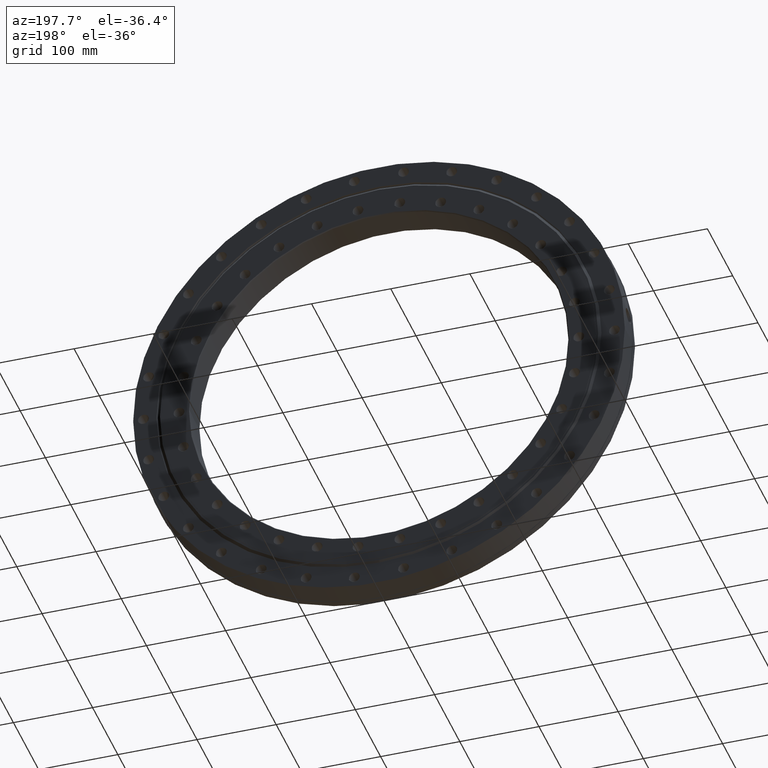
[diagram: clean part render]
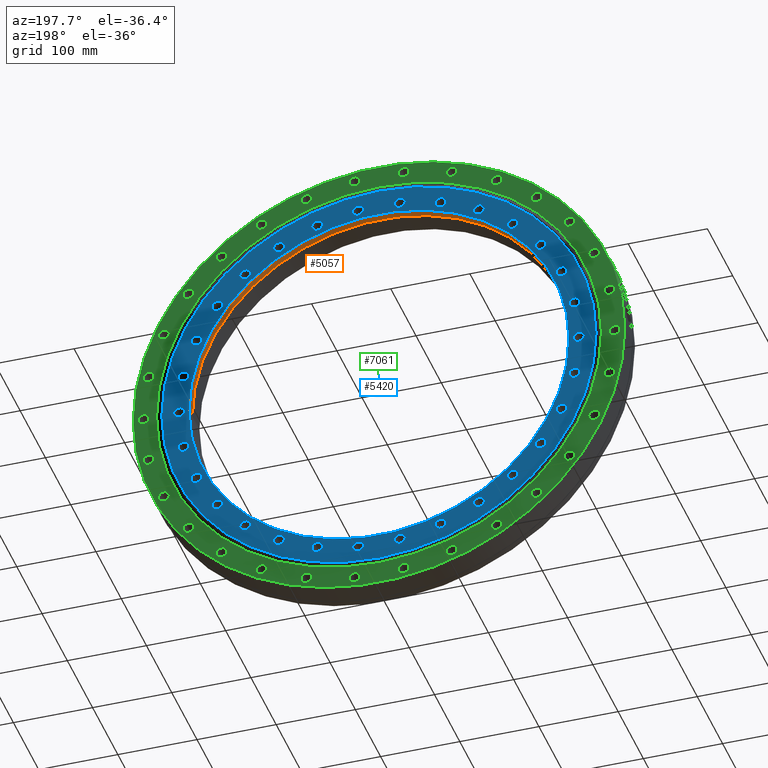
[diagram: same view with three faces highlighted in distinct colors, each labeled with its STEP entity id]
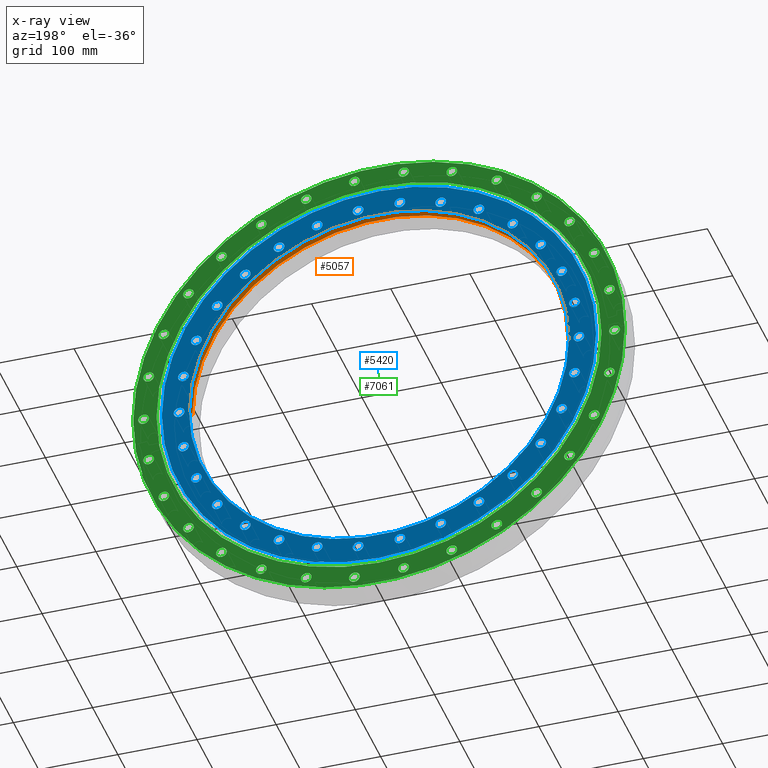
[diagram: x-ray of the same camera — body ghosted, the three highlighted faces saturated]
A machine part, auxiliary view with three faces highlighted in distinct colors.
The next image is the same camera in x-ray (body ghosted, the three faces saturated) — at least one of them is partly hidden behind the body in this view.
Their STEP definitions:

[orange] entity #5057 — the highlighted cylindrical surface (partial cylindrical patch) has radius 239 mm, axis along (0, 1, 0).
#958 = VERTEX_POINT ( 'NONE', #6221 ) ;
#1509 = ORIENTED_EDGE ( 'NONE', *, *, #6224, .T. ) ;
#1664 = CARTESIAN_POINT ( 'NONE',  ( 1.118890220523549700E-015, 9.999999999999976900, 0.0000000000000000000 ) ) ;
#2056 = DIRECTION ( 'NONE',  ( 2.727064569436389700E-017, 1.000000000000000000, 0.0000000000000000000 ) ) ;
#2364 = DIRECTION ( 'NONE',  ( -1.000000000000000000, 5.080780055162196600E-017, 0.0000000000000000000 ) ) ;
#2655 = FACE_OUTER_BOUND ( 'NONE', #4766, .T. ) ;
#2776 = VERTEX_POINT ( 'NONE', #3500 ) ;
#2852 = CARTESIAN_POINT ( 'NONE',  ( 239.0000000000000000, 18.99999999999998900, 2.926905849962173800E-014 ) ) ;
#3241 = LINE ( 'NONE', #5858, #8713 ) ;
#3500 = CARTESIAN_POINT ( 'NONE',  ( 239.0000000000000000, 9.999999999999966200, 2.926905849962173800E-014 ) ) ;
#3670 = EDGE_CURVE ( 'NONE', #2776, #8042, #3241, .T. ) ;
#4346 = VERTEX_POINT ( 'NONE', #4713 ) ;
#4556 = ORIENTED_EDGE ( 'NONE', *, *, #3670, .F. ) ;
#4713 = CARTESIAN_POINT ( 'NONE',  ( -239.0000000000000000, 19.00000000000000400, 0.0000000000000000000 ) ) ;
#4736 = CIRCLE ( 'NONE', #6216, 239.0000000000000000 ) ;
#4748 = CIRCLE ( 'NONE', #5660, 239.0000000000000000 ) ;
#4766 = EDGE_LOOP ( 'NONE', ( #4556, #6559, #1509, #8045 ) ) ;
#5035 = EDGE_CURVE ( 'NONE', #4346, #8042, #4748, .T. ) ;
#5057 = ADVANCED_FACE ( 'NONE', ( #2655 ), #6180, .F. ) ;
#5660 = AXIS2_PLACEMENT_3D ( 'NONE', #7363, #7256, #7220 ) ;
#5809 = DIRECTION ( 'NONE',  ( 2.727064569436389700E-017, 1.000000000000000000, 0.0000000000000000000 ) ) ;
#5858 = CARTESIAN_POINT ( 'NONE',  ( 239.0000000000000000, 31.02910628019323600, 2.926905849962173800E-014 ) ) ;
#6180 = CYLINDRICAL_SURFACE ( 'NONE', #7587, 239.0000000000000000 ) ;
#6216 = AXIS2_PLACEMENT_3D ( 'NONE', #1664, #6565, #2364 ) ;
#6221 = CARTESIAN_POINT ( 'NONE',  ( -239.0000000000000000, 9.999999999999989300, 0.0000000000000000000 ) ) ;
#6224 = EDGE_CURVE ( 'NONE', #958, #4346, #8722, .T. ) ;
#6559 = ORIENTED_EDGE ( 'NONE', *, *, #8697, .T. ) ;
#6565 = DIRECTION ( 'NONE',  ( -5.298555410421252300E-017, -1.000000000000000000, -0.0000000000000000000 ) ) ;
#6789 = VECTOR ( 'NONE', #2056, 1000.000000000000000 ) ;
#6993 = CARTESIAN_POINT ( 'NONE',  ( 1.692367527159823000E-015, 31.02910628019324300, 0.0000000000000000000 ) ) ;
#7030 = DIRECTION ( 'NONE',  ( -1.000000000000000000, 2.903302888664112200E-017, 0.0000000000000000000 ) ) ;
#7220 = DIRECTION ( 'NONE',  ( 1.000000000000000000, -2.903302888664112200E-017, 0.0000000000000000000 ) ) ;
#7256 = DIRECTION ( 'NONE',  ( 2.727064569436405700E-017, 1.000000000000000000, -0.0000000000000000000 ) ) ;
#7363 = CARTESIAN_POINT ( 'NONE',  ( 1.364326031772825200E-015, 18.99999999999999600, 0.0000000000000000000 ) ) ;
#7384 = DIRECTION ( 'NONE',  ( 2.727064569436389700E-017, 1.000000000000000000, 0.0000000000000000000 ) ) ;
#7587 = AXIS2_PLACEMENT_3D ( 'NONE', #6993, #7384, #7030 ) ;
#8042 = VERTEX_POINT ( 'NONE', #2852 ) ;
#8045 = ORIENTED_EDGE ( 'NONE', *, *, #5035, .T. ) ;
#8697 = EDGE_CURVE ( 'NONE', #2776, #958, #4736, .T. ) ;
#8713 = VECTOR ( 'NONE', #5809, 1000.000000000000000 ) ;
#8722 = LINE ( 'NONE', #9120, #6789 ) ;
#9120 = CARTESIAN_POINT ( 'NONE',  ( -239.0000000000000000, 31.02910628019325000, 0.0000000000000000000 ) ) ;

[blue] entity #5420 — the highlighted planar face has unit normal (-0, -1, 0).
#30 = ORIENTED_EDGE ( 'NONE', *, *, #3298, .F. ) ;
#35 = EDGE_CURVE ( 'NONE', #934, #9122, #8923, .T. ) ;
#36 = FACE_BOUND ( 'NONE', #3409, .T. ) ;
#41 = EDGE_LOOP ( 'NONE', ( #1184, #2986 ) ) ;
#47 = DIRECTION ( 'NONE',  ( -0.9135454576426005300, 0.0000000000000000000, -0.4067366430758008700 ) ) ;
#55 = DIRECTION ( 'NONE',  ( 2.727064569436389700E-017, 1.000000000000000000, 1.540743955509788700E-033 ) ) ;
#65 = CARTESIAN_POINT ( 'NONE',  ( -274.2500000000000000, 19.99999999999998200, 0.0000000000000000000 ) ) ;
#74 = EDGE_LOOP ( 'NONE', ( #2529, #2567 ) ) ;
#76 = CARTESIAN_POINT ( 'NONE',  ( -230.6702280547581300, 19.99999999999998200, -102.7010023766364400 ) ) ;
#80 = EDGE_CURVE ( 'NONE', #434, #8627, #1172, .T. ) ;
#103 = CIRCLE ( 'NONE', #3186, 6.749999999999989300 ) ;
#111 = VERTEX_POINT ( 'NONE', #6195 ) ;
#115 = VERTEX_POINT ( 'NONE', #6118 ) ;
#118 = AXIS2_PLACEMENT_3D ( 'NONE', #2129, #7042, #2816 ) ;
#130 = PLANE ( 'NONE',  #1558 ) ;
#137 = AXIS2_PLACEMENT_3D ( 'NONE', #5610, #5429, #4979 ) ;
#138 = EDGE_LOOP ( 'NONE', ( #4149, #8021 ) ) ;
#148 = CARTESIAN_POINT ( 'NONE',  ( 197.5267910796751500, 19.99999999999996800, 148.4157762038482200 ) ) ;
#151 = EDGE_LOOP ( 'NONE', ( #7622, #3873 ) ) ;
#179 = VERTEX_POINT ( 'NONE', #7129 ) ;
#248 = VERTEX_POINT ( 'NONE', #7992 ) ;
#267 = CARTESIAN_POINT ( 'NONE',  ( 119.4999999999979000, 19.99999999999997200, -218.6714144555720300 ) ) ;
#274 = ORIENTED_EDGE ( 'NONE', *, *, #7917, .T. ) ;
#284 = CARTESIAN_POINT ( 'NONE',  ( -253.7322691852858400, 19.99999999999998200, 52.49770193148463400 ) ) ;
#285 = EDGE_CURVE ( 'NONE', #5700, #8342, #8809, .T. ) ;
#302 = CARTESIAN_POINT ( 'NONE',  ( -119.5000000000026400, 19.99999999999997900, -218.6714144555692500 ) ) ;
#319 = ORIENTED_EDGE ( 'NONE', *, *, #1626, .F. ) ;
#320 = EDGE_LOOP ( 'NONE', ( #1634, #2887 ) ) ;
#378 = CIRCLE ( 'NONE', #2162, 6.749999999999984900 ) ;
#387 = DIRECTION ( 'NONE',  ( 2.727064569436389400E-017, 1.000000000000000000, 3.081487911019577400E-033 ) ) ;
#405 = CIRCLE ( 'NONE', #5872, 6.749999999999978700 ) ;
#434 = VERTEX_POINT ( 'NONE', #6411 ) ;
#451 = AXIS2_PLACEMENT_3D ( 'NONE', #1970, #1897, #1938 ) ;
#463 = AXIS2_PLACEMENT_3D ( 'NONE', #3765, #8766, #4475 ) ;
#470 = CARTESIAN_POINT ( 'NONE',  ( 133.0000000000010800, 19.99999999999997200, 218.6714144555701300 ) ) ;
#529 = CIRCLE ( 'NONE', #3904, 6.749999999999999100 ) ;
#546 = VERTEX_POINT ( 'NONE', #2565 ) ;
#552 = CARTESIAN_POINT ( 'NONE',  ( 26.39343697507980100, 19.99999999999997500, -251.1167785804893000 ) ) ;
#563 = VERTEX_POINT ( 'NONE', #8892 ) ;
#584 = ORIENTED_EDGE ( 'NONE', *, *, #5626, .F. ) ;
#606 = CARTESIAN_POINT ( 'NONE',  ( -84.77679107967327400, 19.99999999999997900, 240.1417703645265600 ) ) ;
#634 = AXIS2_PLACEMENT_3D ( 'NONE', #1310, #6210, #2004 ) ;
#641 = EDGE_CURVE ( 'NONE', #7138, #1745, #3992, .T. ) ;
#642 = CIRCLE ( 'NONE', #956, 6.749999999999977800 ) ;
#651 = DIRECTION ( 'NONE',  ( -0.1045284632676509500, 0.0000000000000000000, -0.9945218953682736200 ) ) ;
#657 = CARTESIAN_POINT ( 'NONE',  ( -26.39343697508533600, 19.99999999999997500, -251.1167785804887600 ) ) ;
#673 = CARTESIAN_POINT ( 'NONE',  ( -168.9554781056140800, 19.99999999999997900, -187.6440684330399100 ) ) ;
#676 = DIRECTION ( 'NONE',  ( 2.727064569436389400E-017, 1.000000000000000000, 9.244463733058732100E-033 ) ) ;
#680 = EDGE_LOOP ( 'NONE', ( #4228, #1804 ) ) ;
#690 = CARTESIAN_POINT ( 'NONE',  ( -26.39343697508533600, 19.99999999999997500, -251.1167785804887600 ) ) ;
#707 = CARTESIAN_POINT ( 'NONE',  ( 252.5000000000000000, 19.99999999999996800, -1.872782329531604500E-012 ) ) ;
#725 = EDGE_CURVE ( 'NONE', #8602, #3472, #9025, .T. ) ;
#734 = AXIS2_PLACEMENT_3D ( 'NONE', #7783, #7771, #7743 ) ;
#751 = ORIENTED_EDGE ( 'NONE', *, *, #3599, .F. ) ;
#765 = AXIS2_PLACEMENT_3D ( 'NONE', #552, #5432, #1240 ) ;
#768 = VERTEX_POINT ( 'NONE', #7713 ) ;
#792 = DIRECTION ( 'NONE',  ( 2.727064569436389400E-017, 1.000000000000000000, -3.081487911019577400E-033 ) ) ;
#799 = FACE_BOUND ( 'NONE', #7203, .T. ) ;
#813 = EDGE_CURVE ( 'NONE', #4054, #4488, #2683, .T. ) ;
#817 = CIRCLE ( 'NONE', #8594, 6.749999999999974200 ) ;
#835 = CARTESIAN_POINT ( 'NONE',  ( -240.2322691852866700, 19.99999999999998200, -52.49770193148079000 ) ) ;
#838 = AXIS2_PLACEMENT_3D ( 'NONE', #5270, #5211, #5182 ) ;
#844 = CIRCLE ( 'NONE', #8089, 6.750000000000004400 ) ;
#854 = EDGE_CURVE ( 'NONE', #8342, #5700, #405, .T. ) ;
#893 = EDGE_CURVE ( 'NONE', #7798, #4093, #4538, .T. ) ;
#899 = CARTESIAN_POINT ( 'NONE',  ( 175.7054781056127700, 19.99999999999997200, 187.6440684330410700 ) ) ;
#918 = ORIENTED_EDGE ( 'NONE', *, *, #1908, .F. ) ;
#920 = AXIS2_PLACEMENT_3D ( 'NONE', #6211, #2005, #6917 ) ;
#934 = VERTEX_POINT ( 'NONE', #6611 ) ;
#956 = AXIS2_PLACEMENT_3D ( 'NONE', #7796, #8126, #7758 ) ;
#977 = EDGE_CURVE ( 'NONE', #3205, #8446, #4215, .T. ) ;
#1004 = AXIS2_PLACEMENT_3D ( 'NONE', #2916, #2858, #2955 ) ;
#1020 = FACE_BOUND ( 'NONE', #1118, .T. ) ;
#1052 = DIRECTION ( 'NONE',  ( 0.9135454576425975400, 0.0000000000000000000, 0.4067366430758075900 ) ) ;
#1107 = AXIS2_PLACEMENT_3D ( 'NONE', #3398, #8399, #4108 ) ;
#1115 = DIRECTION ( 'NONE',  ( 2.727064569436389400E-017, 1.000000000000000000, -3.081487911019577400E-033 ) ) ;
#1118 = EDGE_LOOP ( 'NONE', ( #6970, #6777 ) ) ;
#1129 = CIRCLE ( 'NONE', #5010, 6.749999999999984000 ) ;
#1155 = EDGE_LOOP ( 'NONE', ( #8274, #4587 ) ) ;
#1159 = VERTEX_POINT ( 'NONE', #1167 ) ;
#1167 = CARTESIAN_POINT ( 'NONE',  ( -274.2500000000000000, 19.99999999999998200, 0.0000000000000000000 ) ) ;
#1170 = CIRCLE ( 'NONE', #6841, 6.749999999999996400 ) ;
#1172 = CIRCLE ( 'NONE', #7852, 6.749999999999974200 ) ;
#1184 = ORIENTED_EDGE ( 'NONE', *, *, #4764, .F. ) ;
#1187 = EDGE_CURVE ( 'NONE', #8627, #434, #817, .T. ) ;
#1210 = CARTESIAN_POINT ( 'NONE',  ( 259.2500000000000000, 19.99999999999996800, -1.871955692942179900E-012 ) ) ;
#1230 = ORIENTED_EDGE ( 'NONE', *, *, #5293, .F. ) ;
#1233 = FACE_BOUND ( 'NONE', #5169, .T. ) ;
#1240 = DIRECTION ( 'NONE',  ( 0.1045284632676575500, 0.0000000000000000000, -0.9945218953682728500 ) ) ;
#1246 = EDGE_CURVE ( 'NONE', #5081, #4522, #7658, .T. ) ;
#1263 = EDGE_CURVE ( 'NONE', #4805, #7140, #3866, .T. ) ;
#1270 = ORIENTED_EDGE ( 'NONE', *, *, #7739, .F. ) ;
#1278 = ORIENTED_EDGE ( 'NONE', *, *, #8738, .F. ) ;
#1281 = CARTESIAN_POINT ( 'NONE',  ( -197.5267910796739300, 19.99999999999998200, 148.4157762038499000 ) ) ;
#1287 = CIRCLE ( 'NONE', #463, 6.749999999999969800 ) ;
#1310 = CARTESIAN_POINT ( 'NONE',  ( -230.6702280547565900, 19.99999999999998200, 102.7010023766400100 ) ) ;
#1325 = CARTESIAN_POINT ( 'NONE',  ( 175.7054781056099000, 19.99999999999997200, -187.6440684330436600 ) ) ;
#1342 = CIRCLE ( 'NONE', #920, 6.749999999999978700 ) ;
#1345 = DIRECTION ( 'NONE',  ( 0.9135454576426028700, 0.0000000000000000000, -0.4067366430757957100 ) ) ;
#1347 = CIRCLE ( 'NONE', #9086, 6.749999999999994700 ) ;
#1355 = DIRECTION ( 'NONE',  ( -0.1045284632676509500, 0.0000000000000000000, -0.9945218953682736200 ) ) ;
#1361 = DIRECTION ( 'NONE',  ( 2.727064569436389400E-017, 1.000000000000000000, -1.540743955509788700E-033 ) ) ;
#1375 = DIRECTION ( 'NONE',  ( -0.6691306063588586800, 0.0000000000000000000, -0.7431448254773938000 ) ) ;
#1379 = DIRECTION ( 'NONE',  ( 1.000000000000000000, 0.0000000000000000000, 6.982962677686269900E-015 ) ) ;
#1464 = FACE_BOUND ( 'NONE', #8761, .T. ) ;
#1485 = CARTESIAN_POINT ( 'NONE',  ( 230.6702280547574200, 19.99999999999996800, 102.7010023766379700 ) ) ;
#1488 = EDGE_CURVE ( 'NONE', #7909, #1159, #2873, .T. ) ;
#1517 = ORIENTED_EDGE ( 'NONE', *, *, #6728, .F. ) ;
#1533 = DIRECTION ( 'NONE',  ( 2.727064569436389700E-017, 1.000000000000000000, 3.081487911019577400E-033 ) ) ;
#1549 = VERTEX_POINT ( 'NONE', #267 ) ;
#1550 = CARTESIAN_POINT ( 'NONE',  ( -19.64343697508145300, 19.99999999999997500, 251.1167785804891500 ) ) ;
#1553 = CARTESIAN_POINT ( 'NONE',  ( -71.27679107967706800, 19.99999999999997900, -240.1417703645254000 ) ) ;
#1558 = AXIS2_PLACEMENT_3D ( 'NONE', #65, #6574, #2375 ) ;
#1568 = CARTESIAN_POINT ( 'NONE',  ( 230.6702280547558800, 19.99999999999996800, -102.7010023766415000 ) ) ;
#1592 = CARTESIAN_POINT ( 'NONE',  ( -237.4202280547565600, 19.99999999999998200, 102.7010023766400100 ) ) ;
#1611 = EDGE_LOOP ( 'NONE', ( #7374, #3005 ) ) ;
#1626 = EDGE_CURVE ( 'NONE', #7140, #4805, #6954, .T. ) ;
#1634 = ORIENTED_EDGE ( 'NONE', *, *, #5984, .F. ) ;
#1653 = AXIS2_PLACEMENT_3D ( 'NONE', #4450, #7257, #6928 ) ;
#1657 = ORIENTED_EDGE ( 'NONE', *, *, #7053, .F. ) ;
#1673 = EDGE_LOOP ( 'NONE', ( #1657, #4189 ) ) ;
#1681 = FACE_BOUND ( 'NONE', #6047, .T. ) ;
#1729 = CIRCLE ( 'NONE', #1850, 6.749999999999986700 ) ;
#1745 = VERTEX_POINT ( 'NONE', #9066 ) ;
#1784 = CARTESIAN_POINT ( 'NONE',  ( -26.39343697508144300, 19.99999999999997500, 251.1167785804891500 ) ) ;
#1795 = DIRECTION ( 'NONE',  ( 2.727064569436389400E-017, 1.000000000000000000, -3.081487911019577400E-033 ) ) ;
#1804 = ORIENTED_EDGE ( 'NONE', *, *, #6866, .F. ) ;
#1810 = CARTESIAN_POINT ( 'NONE',  ( 240.2322691852863000, 19.99999999999996800, 52.49770193148246700 ) ) ;
#1824 = DIRECTION ( 'NONE',  ( -0.1045284632676636600, 0.0000000000000000000, 0.9945218953682721800 ) ) ;
#1840 = DIRECTION ( 'NONE',  ( -0.3090169943749570500, 0.0000000000000000000, 0.9510565162951504200 ) ) ;
#1850 = AXIS2_PLACEMENT_3D ( 'NONE', #1485, #1361, #1052 ) ;
#1858 = VERTEX_POINT ( 'NONE', #6202 ) ;
#1876 = DIRECTION ( 'NONE',  ( -0.5000000000000115500, 0.0000000000000000000, 0.8660254037844319400 ) ) ;
#1885 = EDGE_LOOP ( 'NONE', ( #2464, #2062 ) ) ;
#1895 = DIRECTION ( 'NONE',  ( 2.727064569436389400E-017, 1.000000000000000000, -3.081487911019577400E-033 ) ) ;
#1897 = DIRECTION ( 'NONE',  ( 2.727064569436389700E-017, 1.000000000000000000, 3.081487911019577400E-033 ) ) ;
#1908 = EDGE_CURVE ( 'NONE', #5864, #8789, #7298, .T. ) ;
#1914 = DIRECTION ( 'NONE',  ( 2.727064569436389700E-017, 1.000000000000000000, -3.081487911019577400E-033 ) ) ;
#1923 = CARTESIAN_POINT ( 'NONE',  ( -78.02679107967327400, 19.99999999999997900, 240.1417703645265600 ) ) ;
#1927 = CARTESIAN_POINT ( 'NONE',  ( -126.2499999999994200, 19.99999999999997900, 218.6714144555711200 ) ) ;
#1938 = DIRECTION ( 'NONE',  ( -0.8090169943749466700, 0.0000000000000000000, -0.5877852522924742500 ) ) ;
#1970 = CARTESIAN_POINT ( 'NONE',  ( -204.2767910796761700, 19.99999999999998200, -148.4157762038467800 ) ) ;
#1984 = CARTESIAN_POINT ( 'NONE',  ( 223.9202280547574400, 19.99999999999996800, 102.7010023766379700 ) ) ;
#2001 = EDGE_LOOP ( 'NONE', ( #3412, #3888 ) ) ;
#2004 = DIRECTION ( 'NONE',  ( -0.9135454576426058600, 0.0000000000000000000, 0.4067366430757890000 ) ) ;
#2005 = DIRECTION ( 'NONE',  ( 2.727064569436389700E-017, 1.000000000000000000, 0.0000000000000000000 ) ) ;
#2043 = ORIENTED_EDGE ( 'NONE', *, *, #813, .F. ) ;
#2060 = ORIENTED_EDGE ( 'NONE', *, *, #7493, .F. ) ;
#2062 = ORIENTED_EDGE ( 'NONE', *, *, #2419, .F. ) ;
#2088 = DIRECTION ( 'NONE',  ( -0.9781476007338084600, 0.0000000000000000000, 0.2079116908177463300 ) ) ;
#2091 = EDGE_CURVE ( 'NONE', #8789, #5864, #2221, .T. ) ;
#2093 = DIRECTION ( 'NONE',  ( 0.8090169943749432300, 0.0000000000000000000, 0.5877852522924788000 ) ) ;
#2109 = CIRCLE ( 'NONE', #5588, 6.749999999999984900 ) ;
#2117 = FACE_BOUND ( 'NONE', #320, .T. ) ;
#2127 = DIRECTION ( 'NONE',  ( 2.727064569436389700E-017, 1.000000000000000000, 0.0000000000000000000 ) ) ;
#2129 = CARTESIAN_POINT ( 'NONE',  ( 230.6702280547574200, 19.99999999999996800, 102.7010023766379700 ) ) ;
#2152 = ORIENTED_EDGE ( 'NONE', *, *, #2891, .F. ) ;
#2160 = VERTEX_POINT ( 'NONE', #3371 ) ;
#2162 = AXIS2_PLACEMENT_3D ( 'NONE', #7557, #3303, #8298 ) ;
#2202 = DIRECTION ( 'NONE',  ( 2.727064569436389100E-017, 1.000000000000000000, 1.540743955509788700E-033 ) ) ;
#2206 = DIRECTION ( 'NONE',  ( 2.727064569436389400E-017, 1.000000000000000000, 0.0000000000000000000 ) ) ;
#2215 = AXIS2_PLACEMENT_3D ( 'NONE', #2354, #7288, #3044 ) ;
#2216 = EDGE_LOOP ( 'NONE', ( #3036, #9158 ) ) ;
#2221 = CIRCLE ( 'NONE', #137, 6.749999999999992000 ) ;
#2251 = CARTESIAN_POINT ( 'NONE',  ( -246.9822691852858400, 19.99999999999998200, 52.49770193148463400 ) ) ;
#2255 = DIRECTION ( 'NONE',  ( 2.727064569436389700E-017, 1.000000000000000000, 0.0000000000000000000 ) ) ;
#2256 = AXIS2_PLACEMENT_3D ( 'NONE', #2363, #2353, #2345 ) ;
#2264 = DIRECTION ( 'NONE',  ( -0.8090169943749553300, 0.0000000000000000000, 0.5877852522924623700 ) ) ;
#2270 = CIRCLE ( 'NONE', #734, 6.750000000000004400 ) ;
#2280 = DIRECTION ( 'NONE',  ( -0.8090169943749466700, 0.0000000000000000000, -0.5877852522924742500 ) ) ;
#2296 = DIRECTION ( 'NONE',  ( 2.727064569436389700E-017, 1.000000000000000000, 0.0000000000000000000 ) ) ;
#2299 = EDGE_CURVE ( 'NONE', #9017, #9024, #4609, .T. ) ;
#2308 = DIRECTION ( 'NONE',  ( 2.727064569436389700E-017, 1.000000000000000000, 3.081487911019577400E-033 ) ) ;
#2323 = CARTESIAN_POINT ( 'NONE',  ( -204.2767910796739000, 19.99999999999998200, 148.4157762038499000 ) ) ;
#2340 = CARTESIAN_POINT ( 'NONE',  ( -204.2767910796761700, 19.99999999999998200, -148.4157762038467800 ) ) ;
#2345 = DIRECTION ( 'NONE',  ( 0.9781476007338040200, 0.0000000000000000000, 0.2079116908177666400 ) ) ;
#2353 = DIRECTION ( 'NONE',  ( 2.727064569436388700E-017, 1.000000000000000000, -7.703719777548943400E-034 ) ) ;
#2354 = CARTESIAN_POINT ( 'NONE',  ( 168.9554781056099300, 19.99999999999997200, -187.6440684330436600 ) ) ;
#2363 = CARTESIAN_POINT ( 'NONE',  ( 246.9822691852863000, 19.99999999999996800, 52.49770193148246700 ) ) ;
#2375 = DIRECTION ( 'NONE',  ( 1.000000000000000000, -2.727064569436389700E-017, 0.0000000000000000000 ) ) ;
#2380 = DIRECTION ( 'NONE',  ( 0.3090169943749502800, 0.0000000000000000000, -0.9510565162951526400 ) ) ;
#2386 = CIRCLE ( 'NONE', #4378, 6.749999999999960900 ) ;
#2394 = DIRECTION ( 'NONE',  ( 2.727064569436389700E-017, 1.000000000000000000, 3.081487911019577400E-033 ) ) ;
#2398 = DIRECTION ( 'NONE',  ( 2.727064569436389700E-017, 1.000000000000000000, 3.081487911019577400E-033 ) ) ;
#2414 = CARTESIAN_POINT ( 'NONE',  ( 78.02679107967176700, 19.99999999999997200, -240.1417703645270800 ) ) ;
#2419 = EDGE_CURVE ( 'NONE', #7328, #1549, #2109, .T. ) ;
#2434 = CARTESIAN_POINT ( 'NONE',  ( 71.27679107967537700, 19.99999999999997200, 240.1417703645259100 ) ) ;
#2440 = FACE_OUTER_BOUND ( 'NONE', #4221, .T. ) ;
#2464 = ORIENTED_EDGE ( 'NONE', *, *, #8346, .F. ) ;
#2477 = VERTEX_POINT ( 'NONE', #3211 ) ;
#2519 = DIRECTION ( 'NONE',  ( 2.727064569436389700E-017, 1.000000000000000000, -3.081487911019577400E-033 ) ) ;
#2521 = ORIENTED_EDGE ( 'NONE', *, *, #8540, .F. ) ;
#2523 = CARTESIAN_POINT ( 'NONE',  ( 204.2767910796751500, 19.99999999999996800, 148.4157762038482200 ) ) ;
#2529 = ORIENTED_EDGE ( 'NONE', *, *, #3854, .F. ) ;
#2548 = CIRCLE ( 'NONE', #118, 6.749999999999986700 ) ;
#2565 = CARTESIAN_POINT ( 'NONE',  ( -119.4999999999994300, 19.99999999999997900, 218.6714144555711200 ) ) ;
#2567 = ORIENTED_EDGE ( 'NONE', *, *, #7763, .F. ) ;
#2596 = CIRCLE ( 'NONE', #5175, 6.749999999999984900 ) ;
#2649 = FACE_BOUND ( 'NONE', #7542, .T. ) ;
#2672 = CARTESIAN_POINT ( 'NONE',  ( 246.9822691852863000, 19.99999999999996800, 52.49770193148246700 ) ) ;
#2683 = CIRCLE ( 'NONE', #4928, 6.749999999999977800 ) ;
#2693 = AXIS2_PLACEMENT_3D ( 'NONE', #3024, #3058, #3087 ) ;
#2723 = VERTEX_POINT ( 'NONE', #4325 ) ;
#2727 = CARTESIAN_POINT ( 'NONE',  ( -223.9202280547566200, 19.99999999999998200, 102.7010023766400100 ) ) ;
#2757 = CARTESIAN_POINT ( 'NONE',  ( 245.7500000000000300, 19.99999999999996800, -1.872782329531604500E-012 ) ) ;
#2772 = ORIENTED_EDGE ( 'NONE', *, *, #2091, .F. ) ;
#2784 = VERTEX_POINT ( 'NONE', #2727 ) ;
#2816 = DIRECTION ( 'NONE',  ( 0.9135454576425975400, 0.0000000000000000000, 0.4067366430758075900 ) ) ;
#2826 = VERTEX_POINT ( 'NONE', #148 ) ;
#2837 = DIRECTION ( 'NONE',  ( 2.727064569436389700E-017, 1.000000000000000000, -3.081487911019577400E-033 ) ) ;
#2858 = DIRECTION ( 'NONE',  ( 2.727064569436389400E-017, 1.000000000000000000, 3.081487911019577400E-033 ) ) ;
#2859 = EDGE_LOOP ( 'NONE', ( #319, #5249 ) ) ;
#2864 = FACE_BOUND ( 'NONE', #3177, .T. ) ;
#2873 = CIRCLE ( 'NONE', #5340, 274.2500000000000000 ) ;
#2887 = ORIENTED_EDGE ( 'NONE', *, *, #977, .F. ) ;
#2891 = EDGE_CURVE ( 'NONE', #7432, #5756, #3152, .T. ) ;
#2916 = CARTESIAN_POINT ( 'NONE',  ( -78.02679107967705400, 19.99999999999997900, -240.1417703645254000 ) ) ;
#2918 = DIRECTION ( 'NONE',  ( 2.727064569436389400E-017, 1.000000000000000000, 3.081487911019577400E-033 ) ) ;
#2941 = DIRECTION ( 'NONE',  ( 2.727064569436390300E-017, 1.000000000000000000, -3.081487911019577400E-033 ) ) ;
#2955 = DIRECTION ( 'NONE',  ( -0.3090169943749446800, 0.0000000000000000000, -0.9510565162951544200 ) ) ;
#2967 = EDGE_CURVE ( 'NONE', #8461, #2826, #6249, .T. ) ;
#2968 = DIRECTION ( 'NONE',  ( -0.6691306063588674500, 0.0000000000000000000, 0.7431448254773860300 ) ) ;
#2979 = DIRECTION ( 'NONE',  ( -0.4999999999999988300, 0.0000000000000000000, -0.8660254037844393700 ) ) ;
#2984 = CARTESIAN_POINT ( 'NONE',  ( 246.9822691852854700, 19.99999999999996800, -52.49770193148624700 ) ) ;
#2986 = ORIENTED_EDGE ( 'NONE', *, *, #6203, .F. ) ;
#2987 = EDGE_CURVE ( 'NONE', #1745, #7138, #6015, .T. ) ;
#2991 = DIRECTION ( 'NONE',  ( 2.727064569436389700E-017, 1.000000000000000000, 3.081487911019577400E-033 ) ) ;
#3000 = DIRECTION ( 'NONE',  ( 2.727064569436389700E-017, 1.000000000000000000, -3.081487911019577400E-033 ) ) ;
#3005 = ORIENTED_EDGE ( 'NONE', *, *, #3049, .T. ) ;
#3021 = DIRECTION ( 'NONE',  ( -0.9135454576426058600, 0.0000000000000000000, 0.4067366430757890000 ) ) ;
#3024 = CARTESIAN_POINT ( 'NONE',  ( 78.02679107967176700, 19.99999999999997200, -240.1417703645270800 ) ) ;
#3033 = CARTESIAN_POINT ( 'NONE',  ( -126.2500000000026400, 19.99999999999997900, -218.6714144555692500 ) ) ;
#3036 = ORIENTED_EDGE ( 'NONE', *, *, #6022, .F. ) ;
#3044 = DIRECTION ( 'NONE',  ( 0.6691306063588631200, 0.0000000000000000000, -0.7431448254773899100 ) ) ;
#3049 = EDGE_CURVE ( 'NONE', #9030, #2160, #7482, .T. ) ;
#3058 = DIRECTION ( 'NONE',  ( 2.727064569436389700E-017, 1.000000000000000000, 3.081487911019577400E-033 ) ) ;
#3059 = CARTESIAN_POINT ( 'NONE',  ( -168.9554781056112600, 19.99999999999997900, 187.6440684330424600 ) ) ;
#3081 = FACE_BOUND ( 'NONE', #5284, .T. ) ;
#3087 = DIRECTION ( 'NONE',  ( 0.3090169943749502800, 0.0000000000000000000, -0.9510565162951526400 ) ) ;
#3106 = EDGE_CURVE ( 'NONE', #768, #111, #3693, .T. ) ;
#3140 = EDGE_CURVE ( 'NONE', #5039, #2723, #4918, .T. ) ;
#3150 = DIRECTION ( 'NONE',  ( 2.727064569436388700E-017, 1.000000000000000000, -6.162975822039154700E-033 ) ) ;
#3152 = CIRCLE ( 'NONE', #5236, 6.749999999999960900 ) ;
#3173 = DIRECTION ( 'NONE',  ( 0.6691306063588500200, 0.0000000000000000000, 0.7431448254774014600 ) ) ;
#3176 = CARTESIAN_POINT ( 'NONE',  ( 71.27679107967178100, 19.99999999999997200, -240.1417703645270800 ) ) ;
#3177 = EDGE_LOOP ( 'NONE', ( #2152, #5377 ) ) ;
#3182 = CIRCLE ( 'NONE', #9145, 6.749999999999981300 ) ;
#3186 = AXIS2_PLACEMENT_3D ( 'NONE', #2984, #7962, #3683 ) ;
#3205 = VERTEX_POINT ( 'NONE', #1553 ) ;
#3207 = CARTESIAN_POINT ( 'NONE',  ( 168.9554781056128000, 19.99999999999997200, 187.6440684330410700 ) ) ;
#3211 = CARTESIAN_POINT ( 'NONE',  ( 211.0267910796728500, 19.99999999999996800, -148.4157762038513500 ) ) ;
#3250 = CIRCLE ( 'NONE', #5255, 6.749999999999964500 ) ;
#3256 = EDGE_CURVE ( 'NONE', #9024, #9017, #8051, .T. ) ;
#3257 = DIRECTION ( 'NONE',  ( 2.727064569436389700E-017, 1.000000000000000000, -3.081487911019577400E-033 ) ) ;
#3287 = EDGE_LOOP ( 'NONE', ( #8695, #3654 ) ) ;
#3289 = CARTESIAN_POINT ( 'NONE',  ( 126.2500000000011100, 19.99999999999997200, 218.6714144555701300 ) ) ;
#3296 = FACE_BOUND ( 'NONE', #3287, .T. ) ;
#3298 = EDGE_CURVE ( 'NONE', #2826, #8461, #6360, .T. ) ;
#3302 = DIRECTION ( 'NONE',  ( 2.727064569436389100E-017, 1.000000000000000000, -3.081487911019577400E-033 ) ) ;
#3303 = DIRECTION ( 'NONE',  ( 2.727064569436388400E-017, 1.000000000000000000, 9.244463733058732100E-033 ) ) ;
#3327 = DIRECTION ( 'NONE',  ( 0.4999999999999907300, 0.0000000000000000000, 0.8660254037844439300 ) ) ;
#3348 = CARTESIAN_POINT ( 'NONE',  ( 237.4202280547558500, 19.99999999999996800, -102.7010023766415000 ) ) ;
#3371 = CARTESIAN_POINT ( 'NONE',  ( -240.0000000000000000, 19.99999999999998200, 0.0000000000000000000 ) ) ;
#3374 = DIRECTION ( 'NONE',  ( 0.9781476007338040200, 0.0000000000000000000, 0.2079116908177666400 ) ) ;
#3398 = CARTESIAN_POINT ( 'NONE',  ( -246.9822691852858400, 19.99999999999998200, 52.49770193148463400 ) ) ;
#3409 = EDGE_LOOP ( 'NONE', ( #8160, #7153 ) ) ;
#3412 = ORIENTED_EDGE ( 'NONE', *, *, #7209, .F. ) ;
#3437 = DIRECTION ( 'NONE',  ( 2.727064569436389700E-017, 1.000000000000000000, 0.0000000000000000000 ) ) ;
#3472 = VERTEX_POINT ( 'NONE', #8932 ) ;
#3506 = CARTESIAN_POINT ( 'NONE',  ( 253.7322691852854700, 19.99999999999996800, -52.49770193148624700 ) ) ;
#3525 = FACE_BOUND ( 'NONE', #41, .T. ) ;
#3551 = VERTEX_POINT ( 'NONE', #1325 ) ;
#3590 = CARTESIAN_POINT ( 'NONE',  ( -133.0000000000026100, 19.99999999999997900, -218.6714144555692500 ) ) ;
#3599 = EDGE_CURVE ( 'NONE', #4488, #4054, #642, .T. ) ;
#3601 = ORIENTED_EDGE ( 'NONE', *, *, #2299, .F. ) ;
#3613 = DIRECTION ( 'NONE',  ( 2.727064569436389700E-017, 1.000000000000000000, 7.703719777548943400E-034 ) ) ;
#3615 = VERTEX_POINT ( 'NONE', #6573 ) ;
#3638 = AXIS2_PLACEMENT_3D ( 'NONE', #4207, #4175, #4169 ) ;
#3654 = ORIENTED_EDGE ( 'NONE', *, *, #4068, .F. ) ;
#3683 = DIRECTION ( 'NONE',  ( 0.9781476007338070200, 0.0000000000000000000, -0.2079116908177530400 ) ) ;
#3693 = CIRCLE ( 'NONE', #5056, 6.749999999999982200 ) ;
#3704 = ORIENTED_EDGE ( 'NONE', *, *, #893, .F. ) ;
#3711 = CARTESIAN_POINT ( 'NONE',  ( 19.64343697507981200, 19.99999999999997500, -251.1167785804893000 ) ) ;
#3724 = EDGE_CURVE ( 'NONE', #3551, #8178, #2596, .T. ) ;
#3731 = CIRCLE ( 'NONE', #4592, 6.749999999999989300 ) ;
#3765 = CARTESIAN_POINT ( 'NONE',  ( 26.39343697507980100, 19.99999999999997500, -251.1167785804893000 ) ) ;
#3770 = ORIENTED_EDGE ( 'NONE', *, *, #7394, .F. ) ;
#3786 = CIRCLE ( 'NONE', #9018, 6.750000000000008000 ) ;
#3794 = CARTESIAN_POINT ( 'NONE',  ( -245.7500000000000300, 19.99999999999998200, 3.636807042236811800E-012 ) ) ;
#3806 = EDGE_CURVE ( 'NONE', #5344, #2784, #7822, .T. ) ;
#3817 = CARTESIAN_POINT ( 'NONE',  ( 162.2054781056128000, 19.99999999999997200, 187.6440684330410700 ) ) ;
#3854 = EDGE_CURVE ( 'NONE', #7089, #4872, #3786, .T. ) ;
#3861 = CARTESIAN_POINT ( 'NONE',  ( -19.64343697508535100, 19.99999999999997500, -251.1167785804887600 ) ) ;
#3866 = CIRCLE ( 'NONE', #4565, 6.749999999999992000 ) ;
#3868 = EDGE_CURVE ( 'NONE', #2723, #5039, #7355, .T. ) ;
#3873 = ORIENTED_EDGE ( 'NONE', *, *, #4579, .F. ) ;
#3888 = ORIENTED_EDGE ( 'NONE', *, *, #6911, .F. ) ;
#3894 = EDGE_CURVE ( 'NONE', #7156, #115, #1729, .T. ) ;
#3904 = AXIS2_PLACEMENT_3D ( 'NONE', #7893, #3613, #8618 ) ;
#3940 = AXIS2_PLACEMENT_3D ( 'NONE', #690, #676, #651 ) ;
#3992 = CIRCLE ( 'NONE', #6036, 6.749999999999993800 ) ;
#4053 = EDGE_CURVE ( 'NONE', #2160, #9030, #5988, .T. ) ;
#4054 = VERTEX_POINT ( 'NONE', #8072 ) ;
#4066 = AXIS2_PLACEMENT_3D ( 'NONE', #2414, #2394, #2380 ) ;
#4068 = EDGE_CURVE ( 'NONE', #2477, #4367, #2270, .T. ) ;
#4093 = VERTEX_POINT ( 'NONE', #7379 ) ;
#4096 = CARTESIAN_POINT ( 'NONE',  ( 240.0000000000000000, 19.99999999999996800, 2.939152317953647300E-014 ) ) ;
#4108 = DIRECTION ( 'NONE',  ( -0.9781476007338084600, 0.0000000000000000000, 0.2079116908177463300 ) ) ;
#4149 = ORIENTED_EDGE ( 'NONE', *, *, #285, .F. ) ;
#4169 = DIRECTION ( 'NONE',  ( 1.000000000000000000, -2.891205793294678700E-017, 0.0000000000000000000 ) ) ;
#4175 = DIRECTION ( 'NONE',  ( -2.727064569436389700E-017, -1.000000000000000000, 0.0000000000000000000 ) ) ;
#4189 = ORIENTED_EDGE ( 'NONE', *, *, #3724, .F. ) ;
#4207 = CARTESIAN_POINT ( 'NONE',  ( 1.391596677467188900E-015, 19.99999999999997500, 0.0000000000000000000 ) ) ;
#4215 = CIRCLE ( 'NONE', #1004, 6.749999999999984000 ) ;
#4221 = EDGE_LOOP ( 'NONE', ( #274, #8551 ) ) ;
#4228 = ORIENTED_EDGE ( 'NONE', *, *, #4640, .F. ) ;
#4231 = AXIS2_PLACEMENT_3D ( 'NONE', #6877, #6755, #7040 ) ;
#4244 = DIRECTION ( 'NONE',  ( 0.5000000000000036600, 0.0000000000000000000, -0.8660254037844364900 ) ) ;
#4266 = EDGE_CURVE ( 'NONE', #1858, #8284, #1170, .T. ) ;
#4270 = DIRECTION ( 'NONE',  ( 2.727064569436388400E-017, 1.000000000000000000, 9.244463733058732100E-033 ) ) ;
#4280 = CARTESIAN_POINT ( 'NONE',  ( 126.2499999999979000, 19.99999999999997200, -218.6714144555720300 ) ) ;
#4282 = VERTEX_POINT ( 'NONE', #5870 ) ;
#4302 = FACE_BOUND ( 'NONE', #8241, .T. ) ;
#4325 = CARTESIAN_POINT ( 'NONE',  ( -211.0267910796761400, 19.99999999999998200, -148.4157762038467800 ) ) ;
#4367 = VERTEX_POINT ( 'NONE', #4583 ) ;
#4378 = AXIS2_PLACEMENT_3D ( 'NONE', #5715, #1533, #6431 ) ;
#4388 = DIRECTION ( 'NONE',  ( 0.6691306063588631200, 0.0000000000000000000, -0.7431448254773899100 ) ) ;
#4414 = CIRCLE ( 'NONE', #3940, 6.749999999999964500 ) ;
#4421 = VERTEX_POINT ( 'NONE', #3861 ) ;
#4423 = VERTEX_POINT ( 'NONE', #3794 ) ;
#4450 = CARTESIAN_POINT ( 'NONE',  ( -246.9822691852866400, 19.99999999999998200, -52.49770193148079000 ) ) ;
#4468 = ORIENTED_EDGE ( 'NONE', *, *, #2987, .F. ) ;
#4475 = DIRECTION ( 'NONE',  ( 0.1045284632676575500, 0.0000000000000000000, -0.9945218953682728500 ) ) ;
#4479 = AXIS2_PLACEMENT_3D ( 'NONE', #4549, #387, #5268 ) ;
#4488 = VERTEX_POINT ( 'NONE', #3348 ) ;
#4503 = FACE_BOUND ( 'NONE', #5157, .T. ) ;
#4514 = EDGE_CURVE ( 'NONE', #7393, #4821, #1347, .T. ) ;
#4522 = VERTEX_POINT ( 'NONE', #3176 ) ;
#4538 = CIRCLE ( 'NONE', #8293, 6.749999999999984000 ) ;
#4547 = CARTESIAN_POINT ( 'NONE',  ( 168.9554781056099300, 19.99999999999997200, -187.6440684330436600 ) ) ;
#4549 = CARTESIAN_POINT ( 'NONE',  ( -78.02679107967705400, 19.99999999999997900, -240.1417703645254000 ) ) ;
#4551 = CIRCLE ( 'NONE', #6618, 6.749999999999986700 ) ;
#4565 = AXIS2_PLACEMENT_3D ( 'NONE', #3289, #3302, #3327 ) ;
#4579 = EDGE_CURVE ( 'NONE', #6144, #4663, #6051, .T. ) ;
#4583 = CARTESIAN_POINT ( 'NONE',  ( 197.5267910796728800, 19.99999999999996800, -148.4157762038513500 ) ) ;
#4587 = ORIENTED_EDGE ( 'NONE', *, *, #725, .F. ) ;
#4592 = AXIS2_PLACEMENT_3D ( 'NONE', #1927, #1914, #1876 ) ;
#4602 = EDGE_LOOP ( 'NONE', ( #3704, #1230 ) ) ;
#4609 = CIRCLE ( 'NONE', #7206, 6.749999999999994700 ) ;
#4627 = CARTESIAN_POINT ( 'NONE',  ( -230.6702280547565900, 19.99999999999998200, 102.7010023766400100 ) ) ;
#4640 = EDGE_CURVE ( 'NONE', #6010, #546, #3731, .T. ) ;
#4658 = ORIENTED_EDGE ( 'NONE', *, *, #2967, .F. ) ;
#4663 = VERTEX_POINT ( 'NONE', #1810 ) ;
#4733 = AXIS2_PLACEMENT_3D ( 'NONE', #7063, #2837, #7815 ) ;
#4738 = FACE_BOUND ( 'NONE', #2216, .T. ) ;
#4764 = EDGE_CURVE ( 'NONE', #179, #4421, #4414, .T. ) ;
#4778 = CARTESIAN_POINT ( 'NONE',  ( -237.4202280547581000, 19.99999999999998200, -102.7010023766364400 ) ) ;
#4795 = CARTESIAN_POINT ( 'NONE',  ( 274.2500000000000000, 19.99999999999996800, 3.358593846661615900E-014 ) ) ;
#4805 = VERTEX_POINT ( 'NONE', #470 ) ;
#4819 = CARTESIAN_POINT ( 'NONE',  ( -84.77679107967705400, 19.99999999999997900, -240.1417703645254000 ) ) ;
#4821 = VERTEX_POINT ( 'NONE', #302 ) ;
#4872 = VERTEX_POINT ( 'NONE', #7712 ) ;
#4916 = ORIENTED_EDGE ( 'NONE', *, *, #3806, .F. ) ;
#4918 = CIRCLE ( 'NONE', #7449, 6.749999999999998200 ) ;
#4928 = AXIS2_PLACEMENT_3D ( 'NONE', #1568, #2202, #1345 ) ;
#4957 = FACE_BOUND ( 'NONE', #151, .T. ) ;
#4979 = DIRECTION ( 'NONE',  ( 0.6691306063588500200, 0.0000000000000000000, 0.7431448254774014600 ) ) ;
#5010 = AXIS2_PLACEMENT_3D ( 'NONE', #1923, #1895, #1840 ) ;
#5039 = VERTEX_POINT ( 'NONE', #7613 ) ;
#5056 = AXIS2_PLACEMENT_3D ( 'NONE', #3059, #3000, #2968 ) ;
#5081 = VERTEX_POINT ( 'NONE', #6489 ) ;
#5131 = DIRECTION ( 'NONE',  ( 2.727064569436389100E-017, 1.000000000000000000, -2.189528850507526700E-047 ) ) ;
#5157 = EDGE_LOOP ( 'NONE', ( #7526, #1517 ) ) ;
#5169 = EDGE_LOOP ( 'NONE', ( #30, #4658 ) ) ;
#5174 = FACE_BOUND ( 'NONE', #1673, .T. ) ;
#5175 = AXIS2_PLACEMENT_3D ( 'NONE', #4547, #6723, #4388 ) ;
#5182 = DIRECTION ( 'NONE',  ( -0.8090169943749553300, 0.0000000000000000000, 0.5877852522924623700 ) ) ;
#5192 = CIRCLE ( 'NONE', #765, 6.749999999999969800 ) ;
#5211 = DIRECTION ( 'NONE',  ( 2.727064569436389700E-017, 1.000000000000000000, 0.0000000000000000000 ) ) ;
#5236 = AXIS2_PLACEMENT_3D ( 'NONE', #7337, #7304, #7274 ) ;
#5249 = ORIENTED_EDGE ( 'NONE', *, *, #1263, .F. ) ;
#5255 = AXIS2_PLACEMENT_3D ( 'NONE', #657, #5539, #1355 ) ;
#5268 = DIRECTION ( 'NONE',  ( -0.3090169943749446800, 0.0000000000000000000, -0.9510565162951544200 ) ) ;
#5269 = EDGE_CURVE ( 'NONE', #4522, #5081, #8447, .T. ) ;
#5270 = CARTESIAN_POINT ( 'NONE',  ( -204.2767910796739000, 19.99999999999998200, 148.4157762038499000 ) ) ;
#5272 = AXIS2_PLACEMENT_3D ( 'NONE', #8192, #8265, #8304 ) ;
#5284 = EDGE_LOOP ( 'NONE', ( #5343, #2521 ) ) ;
#5293 = EDGE_CURVE ( 'NONE', #4093, #7798, #1129, .T. ) ;
#5317 = AXIS2_PLACEMENT_3D ( 'NONE', #6468, #2255, #7188 ) ;
#5340 = AXIS2_PLACEMENT_3D ( 'NONE', #8227, #8257, #8266 ) ;
#5343 = ORIENTED_EDGE ( 'NONE', *, *, #3894, .F. ) ;
#5344 = VERTEX_POINT ( 'NONE', #1592 ) ;
#5377 = ORIENTED_EDGE ( 'NONE', *, *, #7348, .F. ) ;
#5391 = FACE_BOUND ( 'NONE', #6711, .T. ) ;
#5420 = ADVANCED_FACE ( 'NONE', ( #5843, #7987, #36, #7297, #5391, #2117, #3525, #1681, #8987, #7062, #5174, #3296, #1464, #8768, #6828, #4957, #3081, #1233, #8547, #6606, #4738, #2864, #1020, #8322, #6397, #4503, #2649, #799, #8094, #6169, #4302, #2440 ), #130, .F. ) ;
#5423 = ORIENTED_EDGE ( 'NONE', *, *, #3256, .F. ) ;
#5429 = DIRECTION ( 'NONE',  ( 2.727064569436388700E-017, 1.000000000000000000, -6.162975822039154700E-033 ) ) ;
#5432 = DIRECTION ( 'NONE',  ( 2.727064569436389700E-017, 1.000000000000000000, 3.081487911019577400E-033 ) ) ;
#5434 = AXIS2_PLACEMENT_3D ( 'NONE', #6517, #6577, #6407 ) ;
#5456 = CARTESIAN_POINT ( 'NONE',  ( 253.7322691852863000, 19.99999999999996800, 52.49770193148246700 ) ) ;
#5478 = CARTESIAN_POINT ( 'NONE',  ( 119.5000000000011200, 19.99999999999997200, 218.6714144555701300 ) ) ;
#5526 = AXIS2_PLACEMENT_3D ( 'NONE', #76, #55, #47 ) ;
#5539 = DIRECTION ( 'NONE',  ( 2.727064569436389400E-017, 1.000000000000000000, 9.244463733058732100E-033 ) ) ;
#5560 = DIRECTION ( 'NONE',  ( 2.727064569436389400E-017, 1.000000000000000000, 0.0000000000000000000 ) ) ;
#5583 = DIRECTION ( 'NONE',  ( 0.3090169943749379000, 0.0000000000000000000, 0.9510565162951567500 ) ) ;
#5588 = AXIS2_PLACEMENT_3D ( 'NONE', #4280, #4270, #4244 ) ;
#5590 = DIRECTION ( 'NONE',  ( 2.727064569436389700E-017, 1.000000000000000000, -3.081487911019577400E-033 ) ) ;
#5597 = CARTESIAN_POINT ( 'NONE',  ( 78.02679107967537700, 19.99999999999997200, 240.1417703645259100 ) ) ;
#5606 = EDGE_CURVE ( 'NONE', #4663, #6144, #3182, .T. ) ;
#5607 = EDGE_LOOP ( 'NONE', ( #7442, #8969 ) ) ;
#5608 = DIRECTION ( 'NONE',  ( 0.8090169943749432300, 0.0000000000000000000, 0.5877852522924788000 ) ) ;
#5610 = CARTESIAN_POINT ( 'NONE',  ( 168.9554781056128000, 19.99999999999997200, 187.6440684330410700 ) ) ;
#5620 = DIRECTION ( 'NONE',  ( 2.727064569436389400E-017, 1.000000000000000000, -3.081487911019577400E-033 ) ) ;
#5626 = EDGE_CURVE ( 'NONE', #3615, #4423, #1342, .T. ) ;
#5641 = ORIENTED_EDGE ( 'NONE', *, *, #4514, .F. ) ;
#5644 = CARTESIAN_POINT ( 'NONE',  ( 204.2767910796751500, 19.99999999999996800, 148.4157762038482200 ) ) ;
#5673 = CIRCLE ( 'NONE', #5317, 6.749999999999978700 ) ;
#5686 = CIRCLE ( 'NONE', #2215, 6.749999999999984900 ) ;
#5700 = VERTEX_POINT ( 'NONE', #2757 ) ;
#5715 = CARTESIAN_POINT ( 'NONE',  ( 26.39343697508363500, 19.99999999999997500, 251.1167785804889300 ) ) ;
#5756 = VERTEX_POINT ( 'NONE', #7079 ) ;
#5786 = CIRCLE ( 'NONE', #7292, 6.749999999999982200 ) ;
#5812 = CARTESIAN_POINT ( 'NONE',  ( 19.64343697508364500, 19.99999999999997500, 251.1167785804889300 ) ) ;
#5843 = FACE_BOUND ( 'NONE', #1611, .T. ) ;
#5864 = VERTEX_POINT ( 'NONE', #899 ) ;
#5870 = CARTESIAN_POINT ( 'NONE',  ( -162.2054781056140800, 19.99999999999997900, -187.6440684330399100 ) ) ;
#5872 = AXIS2_PLACEMENT_3D ( 'NONE', #707, #5131, #1379 ) ;
#5930 = CIRCLE ( 'NONE', #6388, 6.749999999999996400 ) ;
#5941 = DIRECTION ( 'NONE',  ( -0.1045284632676636600, 0.0000000000000000000, 0.9945218953682721800 ) ) ;
#5967 = DIRECTION ( 'NONE',  ( 2.727064569436389400E-017, 1.000000000000000000, -3.081487911019577400E-033 ) ) ;
#5984 = EDGE_CURVE ( 'NONE', #8446, #3205, #7860, .T. ) ;
#5988 = CIRCLE ( 'NONE', #8964, 240.0000000000000000 ) ;
#6010 = VERTEX_POINT ( 'NONE', #8163 ) ;
#6015 = CIRCLE ( 'NONE', #838, 6.749999999999993800 ) ;
#6022 = EDGE_CURVE ( 'NONE', #8284, #1858, #5930, .T. ) ;
#6036 = AXIS2_PLACEMENT_3D ( 'NONE', #2323, #2296, #2264 ) ;
#6047 = EDGE_LOOP ( 'NONE', ( #2060, #6465 ) ) ;
#6049 = CARTESIAN_POINT ( 'NONE',  ( -26.39343697508144300, 19.99999999999997500, 251.1167785804891500 ) ) ;
#6051 = CIRCLE ( 'NONE', #2256, 6.749999999999981300 ) ;
#6118 = CARTESIAN_POINT ( 'NONE',  ( 237.4202280547574200, 19.99999999999996800, 102.7010023766379700 ) ) ;
#6144 = VERTEX_POINT ( 'NONE', #5456 ) ;
#6164 = EDGE_LOOP ( 'NONE', ( #6909, #7586 ) ) ;
#6169 = FACE_BOUND ( 'NONE', #1155, .T. ) ;
#6195 = CARTESIAN_POINT ( 'NONE',  ( -162.2054781056112900, 19.99999999999997900, 187.6440684330424600 ) ) ;
#6202 = CARTESIAN_POINT ( 'NONE',  ( 84.77679107967536300, 19.99999999999997200, 240.1417703645259100 ) ) ;
#6203 = EDGE_CURVE ( 'NONE', #4421, #179, #3250, .T. ) ;
#6210 = DIRECTION ( 'NONE',  ( 2.727064569436390300E-017, 1.000000000000000000, -3.081487911019577400E-033 ) ) ;
#6211 = CARTESIAN_POINT ( 'NONE',  ( -252.5000000000000000, 19.99999999999998200, 3.635980405647386900E-012 ) ) ;
#6214 = ORIENTED_EDGE ( 'NONE', *, *, #641, .F. ) ;
#6249 = CIRCLE ( 'NONE', #8125, 6.749999999999992900 ) ;
#6360 = CIRCLE ( 'NONE', #7942, 6.749999999999992900 ) ;
#6388 = AXIS2_PLACEMENT_3D ( 'NONE', #6712, #2519, #7454 ) ;
#6396 = CIRCLE ( 'NONE', #7174, 6.749999999999994700 ) ;
#6397 = FACE_BOUND ( 'NONE', #680, .T. ) ;
#6407 = DIRECTION ( 'NONE',  ( 0.9781476007338070200, 0.0000000000000000000, -0.2079116908177530400 ) ) ;
#6409 = CARTESIAN_POINT ( 'NONE',  ( -168.9554781056140800, 19.99999999999997900, -187.6440684330399100 ) ) ;
#6411 = CARTESIAN_POINT ( 'NONE',  ( -33.14343697508142800, 19.99999999999997500, 251.1167785804891500 ) ) ;
#6431 = DIRECTION ( 'NONE',  ( 0.1045284632676443300, 0.0000000000000000000, 0.9945218953682741800 ) ) ;
#6444 = EDGE_CURVE ( 'NONE', #9122, #934, #103, .T. ) ;
#6465 = ORIENTED_EDGE ( 'NONE', *, *, #7691, .F. ) ;
#6468 = CARTESIAN_POINT ( 'NONE',  ( -252.5000000000000000, 19.99999999999998200, 3.635980405647386900E-012 ) ) ;
#6489 = CARTESIAN_POINT ( 'NONE',  ( 84.77679107967175300, 19.99999999999997200, -240.1417703645270800 ) ) ;
#6517 = CARTESIAN_POINT ( 'NONE',  ( 246.9822691852854700, 19.99999999999996800, -52.49770193148624700 ) ) ;
#6573 = CARTESIAN_POINT ( 'NONE',  ( -259.2500000000000000, 19.99999999999998200, 3.635980405647386900E-012 ) ) ;
#6574 = DIRECTION ( 'NONE',  ( -2.727064569436389700E-017, -1.000000000000000000, 0.0000000000000000000 ) ) ;
#6577 = DIRECTION ( 'NONE',  ( 2.727064569436389400E-017, 1.000000000000000000, 7.703719777548943400E-034 ) ) ;
#6587 = CARTESIAN_POINT ( 'NONE',  ( -126.2500000000026400, 19.99999999999997900, -218.6714144555692500 ) ) ;
#6606 = FACE_BOUND ( 'NONE', #2859, .T. ) ;
#6611 = CARTESIAN_POINT ( 'NONE',  ( 240.2322691852855000, 19.99999999999996800, -52.49770193148624700 ) ) ;
#6618 = AXIS2_PLACEMENT_3D ( 'NONE', #6409, #2206, #7130 ) ;
#6622 = CIRCLE ( 'NONE', #634, 6.749999999999986700 ) ;
#6636 = DIRECTION ( 'NONE',  ( -0.9135454576426005300, 0.0000000000000000000, -0.4067366430758008700 ) ) ;
#6695 = DIRECTION ( 'NONE',  ( 2.727064569436389700E-017, 1.000000000000000000, 1.540743955509788700E-033 ) ) ;
#6711 = EDGE_LOOP ( 'NONE', ( #5641, #1278 ) ) ;
#6712 = CARTESIAN_POINT ( 'NONE',  ( 78.02679107967537700, 19.99999999999997200, 240.1417703645259100 ) ) ;
#6723 = DIRECTION ( 'NONE',  ( 2.727064569436390300E-017, 1.000000000000000000, 0.0000000000000000000 ) ) ;
#6728 = EDGE_CURVE ( 'NONE', #111, #768, #5786, .T. ) ;
#6755 = DIRECTION ( 'NONE',  ( 2.727064569436389100E-017, 1.000000000000000000, -3.081487911019577400E-033 ) ) ;
#6777 = ORIENTED_EDGE ( 'NONE', *, *, #1187, .F. ) ;
#6828 = FACE_BOUND ( 'NONE', #138, .T. ) ;
#6841 = AXIS2_PLACEMENT_3D ( 'NONE', #5597, #5590, #5583 ) ;
#6866 = EDGE_CURVE ( 'NONE', #546, #6010, #8815, .T. ) ;
#6877 = CARTESIAN_POINT ( 'NONE',  ( 126.2500000000011100, 19.99999999999997200, 218.6714144555701300 ) ) ;
#6909 = ORIENTED_EDGE ( 'NONE', *, *, #35, .F. ) ;
#6911 = EDGE_CURVE ( 'NONE', #4282, #563, #4551, .T. ) ;
#6915 = CARTESIAN_POINT ( 'NONE',  ( -230.6702280547581300, 19.99999999999998200, -102.7010023766364400 ) ) ;
#6917 = DIRECTION ( 'NONE',  ( -1.000000000000000000, 0.0000000000000000000, 0.0000000000000000000 ) ) ;
#6924 = EDGE_CURVE ( 'NONE', #4367, #2477, #844, .T. ) ;
#6928 = DIRECTION ( 'NONE',  ( -0.9781476007338055800, 0.0000000000000000000, -0.2079116908177599500 ) ) ;
#6944 = CARTESIAN_POINT ( 'NONE',  ( 211.0267910796751200, 19.99999999999996800, 148.4157762038482200 ) ) ;
#6954 = CIRCLE ( 'NONE', #4231, 6.749999999999992000 ) ;
#6970 = ORIENTED_EDGE ( 'NONE', *, *, #80, .F. ) ;
#7007 = CIRCLE ( 'NONE', #8863, 6.749999999999986700 ) ;
#7040 = DIRECTION ( 'NONE',  ( 0.4999999999999907300, 0.0000000000000000000, 0.8660254037844439300 ) ) ;
#7042 = DIRECTION ( 'NONE',  ( 2.727064569436389400E-017, 1.000000000000000000, -1.540743955509788700E-033 ) ) ;
#7044 = VERTEX_POINT ( 'NONE', #3711 ) ;
#7053 = EDGE_CURVE ( 'NONE', #8178, #3551, #5686, .T. ) ;
#7062 = FACE_BOUND ( 'NONE', #1885, .T. ) ;
#7063 = CARTESIAN_POINT ( 'NONE',  ( -126.2499999999994200, 19.99999999999997900, 218.6714144555711200 ) ) ;
#7067 = EDGE_LOOP ( 'NONE', ( #3601, #5423 ) ) ;
#7079 = CARTESIAN_POINT ( 'NONE',  ( 33.14343697508362400, 19.99999999999997500, 251.1167785804889300 ) ) ;
#7089 = VERTEX_POINT ( 'NONE', #284 ) ;
#7091 = CARTESIAN_POINT ( 'NONE',  ( -78.02679107967327400, 19.99999999999997900, 240.1417703645265600 ) ) ;
#7119 = CARTESIAN_POINT ( 'NONE',  ( 132.9999999999978700, 19.99999999999997200, -218.6714144555720300 ) ) ;
#7129 = CARTESIAN_POINT ( 'NONE',  ( -33.14343697508532200, 19.99999999999997500, -251.1167785804887600 ) ) ;
#7130 = DIRECTION ( 'NONE',  ( -0.6691306063588586800, 0.0000000000000000000, -0.7431448254773938000 ) ) ;
#7138 = VERTEX_POINT ( 'NONE', #1281 ) ;
#7140 = VERTEX_POINT ( 'NONE', #5478 ) ;
#7153 = ORIENTED_EDGE ( 'NONE', *, *, #3140, .F. ) ;
#7156 = VERTEX_POINT ( 'NONE', #1984 ) ;
#7162 = CARTESIAN_POINT ( 'NONE',  ( 204.2767910796728800, 19.99999999999996800, -148.4157762038513500 ) ) ;
#7174 = AXIS2_PLACEMENT_3D ( 'NONE', #6587, #2398, #7331 ) ;
#7188 = DIRECTION ( 'NONE',  ( -1.000000000000000000, 0.0000000000000000000, 0.0000000000000000000 ) ) ;
#7195 = DIRECTION ( 'NONE',  ( -0.3090169943749570500, 0.0000000000000000000, 0.9510565162951504200 ) ) ;
#7203 = EDGE_LOOP ( 'NONE', ( #4916, #1270 ) ) ;
#7206 = AXIS2_PLACEMENT_3D ( 'NONE', #6915, #6695, #6636 ) ;
#7209 = EDGE_CURVE ( 'NONE', #563, #4282, #7007, .T. ) ;
#7257 = DIRECTION ( 'NONE',  ( 2.727064569436389700E-017, 1.000000000000000000, 7.703719777548943400E-034 ) ) ;
#7274 = DIRECTION ( 'NONE',  ( 0.1045284632676443300, 0.0000000000000000000, 0.9945218953682741800 ) ) ;
#7288 = DIRECTION ( 'NONE',  ( 2.727064569436390300E-017, 1.000000000000000000, 0.0000000000000000000 ) ) ;
#7292 = AXIS2_PLACEMENT_3D ( 'NONE', #7512, #3257, #8252 ) ;
#7297 = FACE_BOUND ( 'NONE', #2001, .T. ) ;
#7298 = CIRCLE ( 'NONE', #9012, 6.749999999999992000 ) ;
#7304 = DIRECTION ( 'NONE',  ( 2.727064569436389700E-017, 1.000000000000000000, 3.081487911019577400E-033 ) ) ;
#7328 = VERTEX_POINT ( 'NONE', #7119 ) ;
#7331 = DIRECTION ( 'NONE',  ( -0.4999999999999988300, 0.0000000000000000000, -0.8660254037844393700 ) ) ;
#7337 = CARTESIAN_POINT ( 'NONE',  ( 26.39343697508363500, 19.99999999999997500, 251.1167785804889300 ) ) ;
#7348 = EDGE_CURVE ( 'NONE', #5756, #7432, #2386, .T. ) ;
#7355 = CIRCLE ( 'NONE', #451, 6.749999999999998200 ) ;
#7374 = ORIENTED_EDGE ( 'NONE', *, *, #4053, .T. ) ;
#7375 = EDGE_CURVE ( 'NONE', #3472, #8602, #529, .T. ) ;
#7379 = CARTESIAN_POINT ( 'NONE',  ( -71.27679107967328800, 19.99999999999997900, 240.1417703645265600 ) ) ;
#7393 = VERTEX_POINT ( 'NONE', #3590 ) ;
#7394 = EDGE_CURVE ( 'NONE', #4423, #3615, #5673, .T. ) ;
#7426 = CIRCLE ( 'NONE', #8211, 274.2500000000000000 ) ;
#7432 = VERTEX_POINT ( 'NONE', #5812 ) ;
#7442 = ORIENTED_EDGE ( 'NONE', *, *, #5269, .F. ) ;
#7449 = AXIS2_PLACEMENT_3D ( 'NONE', #2340, #2308, #2280 ) ;
#7454 = DIRECTION ( 'NONE',  ( 0.3090169943749379000, 0.0000000000000000000, 0.9510565162951567500 ) ) ;
#7482 = CIRCLE ( 'NONE', #3638, 240.0000000000000000 ) ;
#7493 = EDGE_CURVE ( 'NONE', #7044, #248, #1287, .T. ) ;
#7512 = CARTESIAN_POINT ( 'NONE',  ( -168.9554781056112600, 19.99999999999997900, 187.6440684330424600 ) ) ;
#7526 = ORIENTED_EDGE ( 'NONE', *, *, #3106, .F. ) ;
#7542 = EDGE_LOOP ( 'NONE', ( #4468, #6214 ) ) ;
#7557 = CARTESIAN_POINT ( 'NONE',  ( 126.2499999999979000, 19.99999999999997200, -218.6714144555720300 ) ) ;
#7568 = AXIS2_PLACEMENT_3D ( 'NONE', #4627, #2941, #3021 ) ;
#7586 = ORIENTED_EDGE ( 'NONE', *, *, #6444, .F. ) ;
#7613 = CARTESIAN_POINT ( 'NONE',  ( -197.5267910796762000, 19.99999999999998200, -148.4157762038467800 ) ) ;
#7622 = ORIENTED_EDGE ( 'NONE', *, *, #5606, .F. ) ;
#7628 = DIRECTION ( 'NONE',  ( 2.727064569436388700E-017, 1.000000000000000000, -7.703719777548943400E-034 ) ) ;
#7658 = CIRCLE ( 'NONE', #2693, 6.749999999999996400 ) ;
#7691 = EDGE_CURVE ( 'NONE', #248, #7044, #5192, .T. ) ;
#7701 = CARTESIAN_POINT ( 'NONE',  ( 1.391596677467188700E-015, 19.99999999999997500, 0.0000000000000000000 ) ) ;
#7712 = CARTESIAN_POINT ( 'NONE',  ( -240.2322691852858700, 19.99999999999998200, 52.49770193148463400 ) ) ;
#7713 = CARTESIAN_POINT ( 'NONE',  ( -175.7054781056112300, 19.99999999999997900, 187.6440684330424600 ) ) ;
#7739 = EDGE_CURVE ( 'NONE', #2784, #5344, #6622, .T. ) ;
#7743 = DIRECTION ( 'NONE',  ( 0.8090169943749500000, 0.0000000000000000000, -0.5877852522924695800 ) ) ;
#7758 = DIRECTION ( 'NONE',  ( 0.9135454576426028700, 0.0000000000000000000, -0.4067366430757957100 ) ) ;
#7763 = EDGE_CURVE ( 'NONE', #4872, #7089, #8338, .T. ) ;
#7771 = DIRECTION ( 'NONE',  ( 2.727064569436389400E-017, 1.000000000000000000, 3.081487911019577400E-033 ) ) ;
#7783 = CARTESIAN_POINT ( 'NONE',  ( 204.2767910796728800, 19.99999999999996800, -148.4157762038513500 ) ) ;
#7796 = CARTESIAN_POINT ( 'NONE',  ( 230.6702280547558800, 19.99999999999996800, -102.7010023766415000 ) ) ;
#7798 = VERTEX_POINT ( 'NONE', #606 ) ;
#7815 = DIRECTION ( 'NONE',  ( -0.5000000000000115500, 0.0000000000000000000, 0.8660254037844319400 ) ) ;
#7822 = CIRCLE ( 'NONE', #7568, 6.749999999999986700 ) ;
#7852 = AXIS2_PLACEMENT_3D ( 'NONE', #6049, #5967, #5941 ) ;
#7860 = CIRCLE ( 'NONE', #4479, 6.749999999999984000 ) ;
#7893 = CARTESIAN_POINT ( 'NONE',  ( -246.9822691852866400, 19.99999999999998200, -52.49770193148079000 ) ) ;
#7900 = DIRECTION ( 'NONE',  ( 0.8090169943749500000, 0.0000000000000000000, -0.5877852522924695800 ) ) ;
#7909 = VERTEX_POINT ( 'NONE', #4795 ) ;
#7917 = EDGE_CURVE ( 'NONE', #1159, #7909, #7426, .T. ) ;
#7927 = DIRECTION ( 'NONE',  ( 1.000000000000000000, -2.891205793294678700E-017, 0.0000000000000000000 ) ) ;
#7942 = AXIS2_PLACEMENT_3D ( 'NONE', #2523, #1115, #2093 ) ;
#7944 = DIRECTION ( 'NONE',  ( -2.727064569436389700E-017, -1.000000000000000000, 0.0000000000000000000 ) ) ;
#7950 = CARTESIAN_POINT ( 'NONE',  ( 162.2054781056099600, 19.99999999999997200, -187.6440684330436600 ) ) ;
#7953 = CARTESIAN_POINT ( 'NONE',  ( 1.391596677467188900E-015, 19.99999999999997500, 0.0000000000000000000 ) ) ;
#7962 = DIRECTION ( 'NONE',  ( 2.727064569436389400E-017, 1.000000000000000000, 7.703719777548943400E-034 ) ) ;
#7987 = FACE_BOUND ( 'NONE', #7067, .T. ) ;
#7992 = CARTESIAN_POINT ( 'NONE',  ( 33.14343697507978700, 19.99999999999997500, -251.1167785804893000 ) ) ;
#8021 = ORIENTED_EDGE ( 'NONE', *, *, #854, .F. ) ;
#8051 = CIRCLE ( 'NONE', #5526, 6.749999999999994700 ) ;
#8072 = CARTESIAN_POINT ( 'NONE',  ( 223.9202280547558800, 19.99999999999996800, -102.7010023766415000 ) ) ;
#8089 = AXIS2_PLACEMENT_3D ( 'NONE', #7162, #2918, #7900 ) ;
#8094 = FACE_BOUND ( 'NONE', #74, .T. ) ;
#8125 = AXIS2_PLACEMENT_3D ( 'NONE', #5644, #5620, #5608 ) ;
#8126 = DIRECTION ( 'NONE',  ( 2.727064569436389100E-017, 1.000000000000000000, 1.540743955509788700E-033 ) ) ;
#8160 = ORIENTED_EDGE ( 'NONE', *, *, #3868, .F. ) ;
#8163 = CARTESIAN_POINT ( 'NONE',  ( -132.9999999999994000, 19.99999999999997900, 218.6714144555711200 ) ) ;
#8178 = VERTEX_POINT ( 'NONE', #7950 ) ;
#8192 = CARTESIAN_POINT ( 'NONE',  ( 252.5000000000000000, 19.99999999999996800, -1.872782329531604500E-012 ) ) ;
#8211 = AXIS2_PLACEMENT_3D ( 'NONE', #7701, #3437, #8429 ) ;
#8227 = CARTESIAN_POINT ( 'NONE',  ( 1.391596677467188700E-015, 19.99999999999997500, 0.0000000000000000000 ) ) ;
#8241 = EDGE_LOOP ( 'NONE', ( #584, #3770 ) ) ;
#8252 = DIRECTION ( 'NONE',  ( -0.6691306063588674500, 0.0000000000000000000, 0.7431448254773860300 ) ) ;
#8257 = DIRECTION ( 'NONE',  ( 2.727064569436389700E-017, 1.000000000000000000, 0.0000000000000000000 ) ) ;
#8265 = DIRECTION ( 'NONE',  ( 2.727064569436389100E-017, 1.000000000000000000, -2.189528850507526700E-047 ) ) ;
#8266 = DIRECTION ( 'NONE',  ( -1.000000000000000000, 2.530134513730985700E-017, 0.0000000000000000000 ) ) ;
#8274 = ORIENTED_EDGE ( 'NONE', *, *, #7375, .F. ) ;
#8284 = VERTEX_POINT ( 'NONE', #2434 ) ;
#8293 = AXIS2_PLACEMENT_3D ( 'NONE', #7091, #792, #7195 ) ;
#8298 = DIRECTION ( 'NONE',  ( 0.5000000000000036600, 0.0000000000000000000, -0.8660254037844364900 ) ) ;
#8304 = DIRECTION ( 'NONE',  ( 1.000000000000000000, 0.0000000000000000000, 6.982962677686269900E-015 ) ) ;
#8322 = FACE_BOUND ( 'NONE', #4602, .T. ) ;
#8338 = CIRCLE ( 'NONE', #1107, 6.750000000000008000 ) ;
#8342 = VERTEX_POINT ( 'NONE', #1210 ) ;
#8346 = EDGE_CURVE ( 'NONE', #1549, #7328, #378, .T. ) ;
#8382 = CARTESIAN_POINT ( 'NONE',  ( -223.9202280547581600, 19.99999999999998200, -102.7010023766364400 ) ) ;
#8399 = DIRECTION ( 'NONE',  ( 2.727064569436389700E-017, 1.000000000000000000, 0.0000000000000000000 ) ) ;
#8429 = DIRECTION ( 'NONE',  ( -1.000000000000000000, 2.530134513730985700E-017, 0.0000000000000000000 ) ) ;
#8446 = VERTEX_POINT ( 'NONE', #4819 ) ;
#8447 = CIRCLE ( 'NONE', #4066, 6.749999999999996400 ) ;
#8461 = VERTEX_POINT ( 'NONE', #6944 ) ;
#8540 = EDGE_CURVE ( 'NONE', #115, #7156, #2548, .T. ) ;
#8542 = EDGE_LOOP ( 'NONE', ( #2772, #918 ) ) ;
#8547 = FACE_BOUND ( 'NONE', #8542, .T. ) ;
#8551 = ORIENTED_EDGE ( 'NONE', *, *, #1488, .T. ) ;
#8594 = AXIS2_PLACEMENT_3D ( 'NONE', #1784, #1795, #1824 ) ;
#8602 = VERTEX_POINT ( 'NONE', #835 ) ;
#8618 = DIRECTION ( 'NONE',  ( -0.9781476007338055800, 0.0000000000000000000, -0.2079116908177599500 ) ) ;
#8627 = VERTEX_POINT ( 'NONE', #1550 ) ;
#8695 = ORIENTED_EDGE ( 'NONE', *, *, #6924, .F. ) ;
#8738 = EDGE_CURVE ( 'NONE', #4821, #7393, #6396, .T. ) ;
#8761 = EDGE_LOOP ( 'NONE', ( #2043, #751 ) ) ;
#8766 = DIRECTION ( 'NONE',  ( 2.727064569436389700E-017, 1.000000000000000000, 3.081487911019577400E-033 ) ) ;
#8768 = FACE_BOUND ( 'NONE', #6164, .T. ) ;
#8789 = VERTEX_POINT ( 'NONE', #3817 ) ;
#8809 = CIRCLE ( 'NONE', #5272, 6.749999999999978700 ) ;
#8815 = CIRCLE ( 'NONE', #4733, 6.749999999999989300 ) ;
#8863 = AXIS2_PLACEMENT_3D ( 'NONE', #673, #5560, #1375 ) ;
#8892 = CARTESIAN_POINT ( 'NONE',  ( -175.7054781056140500, 19.99999999999997900, -187.6440684330399100 ) ) ;
#8923 = CIRCLE ( 'NONE', #5434, 6.749999999999989300 ) ;
#8932 = CARTESIAN_POINT ( 'NONE',  ( -253.7322691852866400, 19.99999999999998200, -52.49770193148079000 ) ) ;
#8964 = AXIS2_PLACEMENT_3D ( 'NONE', #7953, #7944, #7927 ) ;
#8969 = ORIENTED_EDGE ( 'NONE', *, *, #1246, .F. ) ;
#8987 = FACE_BOUND ( 'NONE', #5607, .T. ) ;
#9012 = AXIS2_PLACEMENT_3D ( 'NONE', #3207, #3150, #3173 ) ;
#9017 = VERTEX_POINT ( 'NONE', #4778 ) ;
#9018 = AXIS2_PLACEMENT_3D ( 'NONE', #2251, #2127, #2088 ) ;
#9024 = VERTEX_POINT ( 'NONE', #8382 ) ;
#9025 = CIRCLE ( 'NONE', #1653, 6.749999999999999100 ) ;
#9030 = VERTEX_POINT ( 'NONE', #4096 ) ;
#9066 = CARTESIAN_POINT ( 'NONE',  ( -211.0267910796738700, 19.99999999999998200, 148.4157762038499000 ) ) ;
#9086 = AXIS2_PLACEMENT_3D ( 'NONE', #3033, #2991, #2979 ) ;
#9122 = VERTEX_POINT ( 'NONE', #3506 ) ;
#9145 = AXIS2_PLACEMENT_3D ( 'NONE', #2672, #7628, #3374 ) ;
#9158 = ORIENTED_EDGE ( 'NONE', *, *, #4266, .F. ) ;

[green] entity #7061 — the highlighted planar face has unit normal (0, -1, 0).
#2 = CARTESIAN_POINT ( 'NONE',  ( 240.6825558265479700, 19.79999999999999700, 174.8661125570092500 ) ) ;
#11 = AXIS2_PLACEMENT_3D ( 'NONE', #1148, #1208, #1140 ) ;
#12 = DIRECTION ( 'NONE',  ( 0.0000000000000000000, -1.000000000000000000, 0.0000000000000000000 ) ) ;
#69 = CARTESIAN_POINT ( 'NONE',  ( -281.0000000000000000, 19.79999999999999700, 0.0000000000000000000 ) ) ;
#71 = AXIS2_PLACEMENT_3D ( 'NONE', #8017, #8309, #1896 ) ;
#72 = CARTESIAN_POINT ( 'NONE',  ( 247.4325558265479700, 19.79999999999999700, 174.8661125570092500 ) ) ;
#98 = ORIENTED_EDGE ( 'NONE', *, *, #7268, .F. ) ;
#102 = EDGE_CURVE ( 'NONE', #474, #591, #3019, .T. ) ;
#106 = FACE_BOUND ( 'NONE', #4248, .T. ) ;
#114 = DIRECTION ( 'NONE',  ( 0.0000000000000000000, 1.000000000000000000, 0.0000000000000000000 ) ) ;
#131 = CARTESIAN_POINT ( 'NONE',  ( -205.8163553917631500, 19.79999999999999700, -221.0855855795222700 ) ) ;
#143 = EDGE_LOOP ( 'NONE', ( #3988, #5207 ) ) ;
#144 = CIRCLE ( 'NONE', #2277, 6.750000000000011500 ) ;
#154 = CARTESIAN_POINT ( 'NONE',  ( 297.7489112183066600, 19.79999999999999700, -61.85372801828582100 ) ) ;
#189 = VERTEX_POINT ( 'NONE', #7151 ) ;
#202 = AXIS2_PLACEMENT_3D ( 'NONE', #8228, #8190, #7849 ) ;
#207 = CARTESIAN_POINT ( 'NONE',  ( 24.34721782212829300, 19.79999999999999700, 295.8702638720611700 ) ) ;
#218 = CARTESIAN_POINT ( 'NONE',  ( 148.7499999999974700, 19.79999999999999700, -257.6425576258720300 ) ) ;
#236 = DIRECTION ( 'NONE',  ( 0.6691306063588523500, 0.0000000000000000000, 0.7431448254773995700 ) ) ;
#239 = CARTESIAN_POINT ( 'NONE',  ( -199.0663553917631500, 19.79999999999999700, -221.0855855795222700 ) ) ;
#241 = DIRECTION ( 'NONE',  ( 0.0000000000000000000, 1.000000000000000000, 0.0000000000000000000 ) ) ;
#251 = CARTESIAN_POINT ( 'NONE',  ( -24.34721782212561400, 19.79999999999999700, 295.8702638720614600 ) ) ;
#255 = EDGE_CURVE ( 'NONE', #7699, #1082, #9032, .T. ) ;
#256 = ORIENTED_EDGE ( 'NONE', *, *, #3546, .T. ) ;
#257 = CIRCLE ( 'NONE', #1793, 6.749999999999975100 ) ;
#264 = CARTESIAN_POINT ( 'NONE',  ( 265.0297736486746200, 19.79999999999999700, 121.0041513150486500 ) ) ;
#265 = EDGE_LOOP ( 'NONE', ( #6356, #4018 ) ) ;
#296 = DIRECTION ( 'NONE',  ( 0.0000000000000000000, 1.000000000000000000, 0.0000000000000000000 ) ) ;
#316 = CARTESIAN_POINT ( 'NONE',  ( 155.5000000000013600, 19.79999999999999700, 257.6425576258697000 ) ) ;
#321 = EDGE_CURVE ( 'NONE', #5464, #8288, #3565, .T. ) ;
#325 = CIRCLE ( 'NONE', #7445, 6.749999999999984000 ) ;
#342 = CARTESIAN_POINT ( 'NONE',  ( 98.68255582654390400, 19.79999999999999700, -282.9393135978091300 ) ) ;
#343 = ORIENTED_EDGE ( 'NONE', *, *, #8584, .F. ) ;
#354 = DIRECTION ( 'NONE',  ( -0.6691306063588566800, 0.0000000000000000000, -0.7431448254773955800 ) ) ;
#393 = AXIS2_PLACEMENT_3D ( 'NONE', #2933, #2917, #2900 ) ;
#394 = ORIENTED_EDGE ( 'NONE', *, *, #6633, .T. ) ;
#419 = FACE_BOUND ( 'NONE', #2481, .T. ) ;
#441 = DIRECTION ( 'NONE',  ( 1.000000000000000000, 0.0000000000000000000, 0.0000000000000000000 ) ) ;
#442 = CIRCLE ( 'NONE', #1511, 6.750000000000009800 ) ;
#449 = DIRECTION ( 'NONE',  ( 0.0000000000000000000, 1.000000000000000000, 0.0000000000000000000 ) ) ;
#474 = VERTEX_POINT ( 'NONE', #6578 ) ;
#475 = CARTESIAN_POINT ( 'NONE',  ( -98.68255582654568100, 19.79999999999999700, 282.9393135978085600 ) ) ;
#477 = EDGE_LOOP ( 'NONE', ( #2894, #7008 ) ) ;
#536 = CARTESIAN_POINT ( 'NONE',  ( 290.9989112183076300, 19.79999999999999700, 61.85372801828128100 ) ) ;
#555 = CIRCLE ( 'NONE', #8305, 6.749999999999978700 ) ;
#588 = CIRCLE ( 'NONE', #5933, 6.749999999999977800 ) ;
#591 = VERTEX_POINT ( 'NONE', #5137 ) ;
#595 = CIRCLE ( 'NONE', #7094, 310.5000000000000000 ) ;
#607 = CARTESIAN_POINT ( 'NONE',  ( -192.3163553917597400, 19.79999999999999700, 221.0855855795252900 ) ) ;
#609 = AXIS2_PLACEMENT_3D ( 'NONE', #5002, #4500, #4363 ) ;
#638 = AXIS2_PLACEMENT_3D ( 'NONE', #7054, #2829, #7809 ) ;
#661 = CARTESIAN_POINT ( 'NONE',  ( 199.0663553917616500, 19.79999999999999700, 221.0855855795236100 ) ) ;
#701 = EDGE_LOOP ( 'NONE', ( #5794, #7017 ) ) ;
#718 = ORIENTED_EDGE ( 'NONE', *, *, #7588, .F. ) ;
#723 = VERTEX_POINT ( 'NONE', #4123 ) ;
#744 = DIRECTION ( 'NONE',  ( 0.0000000000000000000, 1.000000000000000000, 0.0000000000000000000 ) ) ;
#793 = ORIENTED_EDGE ( 'NONE', *, *, #1311, .T. ) ;
#812 = DIRECTION ( 'NONE',  ( 0.0000000000000000000, 1.000000000000000000, 0.0000000000000000000 ) ) ;
#821 = EDGE_LOOP ( 'NONE', ( #5000, #8691 ) ) ;
#834 = ORIENTED_EDGE ( 'NONE', *, *, #321, .F. ) ;
#837 = VERTEX_POINT ( 'NONE', #3614 ) ;
#860 = FACE_BOUND ( 'NONE', #931, .T. ) ;
#892 = DIRECTION ( 'NONE',  ( 0.0000000000000000000, 1.000000000000000000, 0.0000000000000000000 ) ) ;
#898 = EDGE_CURVE ( 'NONE', #4155, #4757, #8004, .T. ) ;
#909 = DIRECTION ( 'NONE',  ( 0.5000000000000036600, 0.0000000000000000000, -0.8660254037844364900 ) ) ;
#921 = DIRECTION ( 'NONE',  ( 0.6691306063588610100, 0.0000000000000000000, -0.7431448254773915800 ) ) ;
#931 = EDGE_LOOP ( 'NONE', ( #7686, #7230 ) ) ;
#948 = DIRECTION ( 'NONE',  ( 0.0000000000000000000, 1.000000000000000000, 0.0000000000000000000 ) ) ;
#953 = EDGE_CURVE ( 'NONE', #6284, #8656, #6312, .T. ) ;
#959 = CARTESIAN_POINT ( 'NONE',  ( 199.0663553917581800, 19.79999999999999700, -221.0855855795266800 ) ) ;
#965 = CIRCLE ( 'NONE', #638, 6.749999999999994700 ) ;
#992 = CARTESIAN_POINT ( 'NONE',  ( -233.9325558265464100, 19.79999999999999700, 174.8661125570113200 ) ) ;
#1005 = CARTESIAN_POINT ( 'NONE',  ( -265.0297736486736000, 19.79999999999999700, 121.0041513150511500 ) ) ;
#1072 = AXIS2_PLACEMENT_3D ( 'NONE', #1149, #3760, #3887 ) ;
#1081 = CIRCLE ( 'NONE', #6766, 281.0000000000000000 ) ;
#1082 = VERTEX_POINT ( 'NONE', #131 ) ;
#1083 = FACE_BOUND ( 'NONE', #2265, .T. ) ;
#1098 = CARTESIAN_POINT ( 'NONE',  ( -31.09721782212561100, 19.79999999999999700, 295.8702638720614600 ) ) ;
#1100 = EDGE_CURVE ( 'NONE', #6166, #8982, #6846, .T. ) ;
#1105 = EDGE_CURVE ( 'NONE', #5357, #1645, #3098, .T. ) ;
#1125 = EDGE_CURVE ( 'NONE', #1082, #7699, #8566, .T. ) ;
#1140 = DIRECTION ( 'NONE',  ( -0.9135454576426065300, 0.0000000000000000000, 0.4067366430757875000 ) ) ;
#1146 = EDGE_LOOP ( 'NONE', ( #834, #6218 ) ) ;
#1148 = CARTESIAN_POINT ( 'NONE',  ( -271.7797736486735400, 19.79999999999999700, 121.0041513150511500 ) ) ;
#1149 = CARTESIAN_POINT ( 'NONE',  ( -148.7499999999992300, 19.79999999999999700, 257.6425576258708900 ) ) ;
#1179 = CARTESIAN_POINT ( 'NONE',  ( -31.09721782212561100, 19.79999999999999700, 295.8702638720614600 ) ) ;
#1205 = CARTESIAN_POINT ( 'NONE',  ( 7.948642048065981400E-015, 19.79999999999999700, 0.0000000000000000000 ) ) ;
#1208 = DIRECTION ( 'NONE',  ( 0.0000000000000000000, 1.000000000000000000, 0.0000000000000000000 ) ) ;
#1223 = DIRECTION ( 'NONE',  ( -0.3090169943749435100, 0.0000000000000000000, -0.9510565162951548600 ) ) ;
#1226 = CARTESIAN_POINT ( 'NONE',  ( -141.9999999999992300, 19.79999999999999700, 257.6425576258708900 ) ) ;
#1229 = DIRECTION ( 'NONE',  ( 0.9781476007338040200, 0.0000000000000000000, 0.2079116908177668100 ) ) ;
#1237 = DIRECTION ( 'NONE',  ( 0.0000000000000000000, 1.000000000000000000, 0.0000000000000000000 ) ) ;
#1265 = CARTESIAN_POINT ( 'NONE',  ( -91.93255582655024200, 19.79999999999999700, -282.9393135978070900 ) ) ;
#1280 = EDGE_CURVE ( 'NONE', #2840, #8873, #3640, .T. ) ;
#1293 = VERTEX_POINT ( 'NONE', #3235 ) ;
#1294 = CARTESIAN_POINT ( 'NONE',  ( 85.18255582654826700, 19.79999999999999700, 282.9393135978077100 ) ) ;
#1301 = FACE_BOUND ( 'NONE', #7971, .T. ) ;
#1311 = EDGE_CURVE ( 'NONE', #7725, #6900, #3969, .T. ) ;
#1328 = AXIS2_PLACEMENT_3D ( 'NONE', #2717, #2666, #2637 ) ;
#1333 = CARTESIAN_POINT ( 'NONE',  ( -290.9989112183080200, 19.79999999999999700, -61.85372801827929800 ) ) ;
#1336 = DIRECTION ( 'NONE',  ( 0.1045284632676570500, 0.0000000000000000000, -0.9945218953682728500 ) ) ;
#1370 = VERTEX_POINT ( 'NONE', #5803 ) ;
#1428 = ORIENTED_EDGE ( 'NONE', *, *, #5501, .F. ) ;
#1453 = DIRECTION ( 'NONE',  ( -1.000000000000000000, 0.0000000000000000000, 0.0000000000000000000 ) ) ;
#1478 = AXIS2_PLACEMENT_3D ( 'NONE', #2112, #2415, #2350 ) ;
#1480 = EDGE_LOOP ( 'NONE', ( #4200, #3300 ) ) ;
#1500 = AXIS2_PLACEMENT_3D ( 'NONE', #4759, #4746, #4723 ) ;
#1511 = AXIS2_PLACEMENT_3D ( 'NONE', #536, #5421, #1229 ) ;
#1524 = FACE_BOUND ( 'NONE', #477, .T. ) ;
#1551 = EDGE_CURVE ( 'NONE', #1645, #5357, #2449, .T. ) ;
#1556 = DIRECTION ( 'NONE',  ( 0.3090169943749379000, 0.0000000000000000000, 0.9510565162951567500 ) ) ;
#1590 = DIRECTION ( 'NONE',  ( 0.0000000000000000000, 1.000000000000000000, 0.0000000000000000000 ) ) ;
#1593 = EDGE_LOOP ( 'NONE', ( #2924, #8502 ) ) ;
#1604 = ORIENTED_EDGE ( 'NONE', *, *, #3325, .F. ) ;
#1645 = VERTEX_POINT ( 'NONE', #7497 ) ;
#1649 = CARTESIAN_POINT ( 'NONE',  ( -247.4325558265491900, 19.79999999999999700, -174.8661125570075400 ) ) ;
#1675 = VERTEX_POINT ( 'NONE', #7596 ) ;
#1704 = EDGE_CURVE ( 'NONE', #4997, #3344, #3193, .T. ) ;
#1710 = ORIENTED_EDGE ( 'NONE', *, *, #7862, .F. ) ;
#1735 = ORIENTED_EDGE ( 'NONE', *, *, #7186, .F. ) ;
#1743 = FACE_BOUND ( 'NONE', #265, .T. ) ;
#1793 = AXIS2_PLACEMENT_3D ( 'NONE', #2191, #2179, #2155 ) ;
#1796 = DIRECTION ( 'NONE',  ( -0.1045284632676636600, 0.0000000000000000000, 0.9945218953682721800 ) ) ;
#1834 = DIRECTION ( 'NONE',  ( 0.0000000000000000000, 1.000000000000000000, 0.0000000000000000000 ) ) ;
#1854 = DIRECTION ( 'NONE',  ( 0.0000000000000000000, 1.000000000000000000, 0.0000000000000000000 ) ) ;
#1880 = DIRECTION ( 'NONE',  ( -0.1045284632676636600, 0.0000000000000000000, 0.9945218953682721800 ) ) ;
#1896 = DIRECTION ( 'NONE',  ( -0.8090169943749553300, 0.0000000000000000000, 0.5877852522924623700 ) ) ;
#1906 = AXIS2_PLACEMENT_3D ( 'NONE', #9059, #9022, #8991 ) ;
#1912 = VERTEX_POINT ( 'NONE', #7338 ) ;
#1935 = CARTESIAN_POINT ( 'NONE',  ( -142.0000000000031500, 19.79999999999999700, -257.6425576258686800 ) ) ;
#1947 = EDGE_LOOP ( 'NONE', ( #3215, #2131 ) ) ;
#1950 = VERTEX_POINT ( 'NONE', #1935 ) ;
#1956 = FACE_BOUND ( 'NONE', #8144, .T. ) ;
#1982 = AXIS2_PLACEMENT_3D ( 'NONE', #4296, #114, #4992 ) ;
#2033 = DIRECTION ( 'NONE',  ( -0.9781476007338056900, 0.0000000000000000000, -0.2079116908177589500 ) ) ;
#2044 = EDGE_CURVE ( 'NONE', #5167, #5545, #588, .T. ) ;
#2045 = DIRECTION ( 'NONE',  ( 0.0000000000000000000, 1.000000000000000000, 0.0000000000000000000 ) ) ;
#2073 = VERTEX_POINT ( 'NONE', #7311 ) ;
#2077 = CARTESIAN_POINT ( 'NONE',  ( -297.5000000000000000, 19.79999999999999700, 4.329869796038109700E-012 ) ) ;
#2087 = AXIS2_PLACEMENT_3D ( 'NONE', #959, #948, #921 ) ;
#2092 = CARTESIAN_POINT ( 'NONE',  ( -297.7489112183079700, 19.79999999999999700, -61.85372801827929800 ) ) ;
#2095 = EDGE_CURVE ( 'NONE', #6560, #2073, #5728, .T. ) ;
#2100 = DIRECTION ( 'NONE',  ( -0.4999999999999969500, 0.0000000000000000000, -0.8660254037844403700 ) ) ;
#2106 = EDGE_LOOP ( 'NONE', ( #4317, #7483 ) ) ;
#2112 = CARTESIAN_POINT ( 'NONE',  ( -290.9989112183080200, 19.79999999999999700, -61.85372801827929800 ) ) ;
#2122 = CARTESIAN_POINT ( 'NONE',  ( 24.34721782212368500, 19.79999999999999700, -295.8702638720616300 ) ) ;
#2126 = DIRECTION ( 'NONE',  ( 0.0000000000000000000, 1.000000000000000000, 0.0000000000000000000 ) ) ;
#2130 = EDGE_CURVE ( 'NONE', #3549, #1370, #2442, .T. ) ;
#2131 = ORIENTED_EDGE ( 'NONE', *, *, #6518, .F. ) ;
#2134 = CARTESIAN_POINT ( 'NONE',  ( -148.7500000000031500, 19.79999999999999700, -257.6425576258686800 ) ) ;
#2142 = AXIS2_PLACEMENT_3D ( 'NONE', #7330, #7310, #7299 ) ;
#2155 = DIRECTION ( 'NONE',  ( 0.3090169943749532800, 0.0000000000000000000, -0.9510565162951516400 ) ) ;
#2172 = CIRCLE ( 'NONE', #6272, 6.749999999999993800 ) ;
#2179 = DIRECTION ( 'NONE',  ( 0.0000000000000000000, 1.000000000000000000, 0.0000000000000000000 ) ) ;
#2191 = CARTESIAN_POINT ( 'NONE',  ( 91.93255582654391800, 19.79999999999999700, -282.9393135978091300 ) ) ;
#2243 = EDGE_CURVE ( 'NONE', #4114, #3903, #4840, .T. ) ;
#2245 = DIRECTION ( 'NONE',  ( 0.0000000000000000000, 1.000000000000000000, 0.0000000000000000000 ) ) ;
#2265 = EDGE_LOOP ( 'NONE', ( #343, #8185 ) ) ;
#2277 = AXIS2_PLACEMENT_3D ( 'NONE', #4611, #449, #5325 ) ;
#2334 = CARTESIAN_POINT ( 'NONE',  ( 310.5000000000000000, 19.79999999999999700, 3.802528311352532000E-014 ) ) ;
#2350 = DIRECTION ( 'NONE',  ( -0.9781476007338056900, 0.0000000000000000000, -0.2079116908177589500 ) ) ;
#2367 = ORIENTED_EDGE ( 'NONE', *, *, #4087, .F. ) ;
#2400 = CARTESIAN_POINT ( 'NONE',  ( 271.7797736486746200, 19.79999999999999700, 121.0041513150486500 ) ) ;
#2412 = CARTESIAN_POINT ( 'NONE',  ( -297.7489112183070600, 19.79999999999999700, 61.85372801828391000 ) ) ;
#2415 = DIRECTION ( 'NONE',  ( 0.0000000000000000000, 1.000000000000000000, 0.0000000000000000000 ) ) ;
#2426 = AXIS2_PLACEMENT_3D ( 'NONE', #8132, #8101, #8039 ) ;
#2442 = CIRCLE ( 'NONE', #1072, 6.750000000000012400 ) ;
#2443 = ORIENTED_EDGE ( 'NONE', *, *, #3161, .F. ) ;
#2449 = CIRCLE ( 'NONE', #11, 6.750000000000011500 ) ;
#2481 = EDGE_LOOP ( 'NONE', ( #6058, #5178 ) ) ;
#2509 = CARTESIAN_POINT ( 'NONE',  ( 199.0663553917616500, 19.79999999999999700, 221.0855855795236100 ) ) ;
#2615 = AXIS2_PLACEMENT_3D ( 'NONE', #2400, #7332, #3086 ) ;
#2637 = DIRECTION ( 'NONE',  ( 1.000000000000000000, 0.0000000000000000000, 6.982962677686269900E-015 ) ) ;
#2640 = CARTESIAN_POINT ( 'NONE',  ( 148.7499999999974700, 19.79999999999999700, -257.6425576258720300 ) ) ;
#2644 = DIRECTION ( 'NONE',  ( 0.8090169943749432300, 0.0000000000000000000, 0.5877852522924788000 ) ) ;
#2645 = EDGE_CURVE ( 'NONE', #1950, #4898, #6798, .T. ) ;
#2646 = ORIENTED_EDGE ( 'NONE', *, *, #4721, .F. ) ;
#2666 = DIRECTION ( 'NONE',  ( 0.0000000000000000000, 1.000000000000000000, 0.0000000000000000000 ) ) ;
#2686 = CARTESIAN_POINT ( 'NONE',  ( 284.2489112183076300, 19.79999999999999700, 61.85372801828128100 ) ) ;
#2711 = FACE_BOUND ( 'NONE', #1146, .T. ) ;
#2717 = CARTESIAN_POINT ( 'NONE',  ( 297.5000000000000000, 19.79999999999999700, -2.252438399426445500E-012 ) ) ;
#2765 = EDGE_CURVE ( 'NONE', #1675, #2962, #555, .T. ) ;
#2775 = CARTESIAN_POINT ( 'NONE',  ( -91.93255582654569500, 19.79999999999999700, 282.9393135978085600 ) ) ;
#2799 = ORIENTED_EDGE ( 'NONE', *, *, #4980, .F. ) ;
#2807 = CARTESIAN_POINT ( 'NONE',  ( 290.9989112183076300, 19.79999999999999700, 61.85372801828128100 ) ) ;
#2829 = DIRECTION ( 'NONE',  ( 0.0000000000000000000, 1.000000000000000000, 0.0000000000000000000 ) ) ;
#2833 = ORIENTED_EDGE ( 'NONE', *, *, #3295, .F. ) ;
#2840 = VERTEX_POINT ( 'NONE', #3206 ) ;
#2860 = CIRCLE ( 'NONE', #2087, 6.750000000000006200 ) ;
#2870 = EDGE_CURVE ( 'NONE', #3344, #4997, #9063, .T. ) ;
#2893 = CARTESIAN_POINT ( 'NONE',  ( 141.9999999999974700, 19.79999999999999700, -257.6425576258720300 ) ) ;
#2894 = ORIENTED_EDGE ( 'NONE', *, *, #4218, .F. ) ;
#2900 = DIRECTION ( 'NONE',  ( 0.1045284632676434600, 0.0000000000000000000, 0.9945218953682744000 ) ) ;
#2910 = EDGE_CURVE ( 'NONE', #8873, #2840, #8619, .T. ) ;
#2917 = DIRECTION ( 'NONE',  ( 0.0000000000000000000, 1.000000000000000000, 0.0000000000000000000 ) ) ;
#2924 = ORIENTED_EDGE ( 'NONE', *, *, #898, .F. ) ;
#2925 = FACE_BOUND ( 'NONE', #7462, .T. ) ;
#2930 = EDGE_CURVE ( 'NONE', #7396, #6190, #7144, .T. ) ;
#2933 = CARTESIAN_POINT ( 'NONE',  ( 31.09721782212829000, 19.79999999999999700, 295.8702638720611700 ) ) ;
#2950 = EDGE_CURVE ( 'NONE', #5638, #1912, #4813, .T. ) ;
#2962 = VERTEX_POINT ( 'NONE', #5807 ) ;
#3019 = CIRCLE ( 'NONE', #7352, 6.750000000000020400 ) ;
#3039 = CIRCLE ( 'NONE', #7168, 6.749999999999984000 ) ;
#3040 = CIRCLE ( 'NONE', #8434, 6.750000000000019500 ) ;
#3062 = AXIS2_PLACEMENT_3D ( 'NONE', #6437, #6420, #6392 ) ;
#3086 = DIRECTION ( 'NONE',  ( 0.9135454576425983100, 0.0000000000000000000, 0.4067366430758060900 ) ) ;
#3098 = CIRCLE ( 'NONE', #6171, 6.750000000000011500 ) ;
#3124 = EDGE_LOOP ( 'NONE', ( #4833, #3648 ) ) ;
#3143 = FACE_BOUND ( 'NONE', #2106, .T. ) ;
#3161 = EDGE_CURVE ( 'NONE', #4898, #1950, #3040, .T. ) ;
#3189 = CIRCLE ( 'NONE', #7364, 6.749999999999998200 ) ;
#3191 = DIRECTION ( 'NONE',  ( 0.6691306063588523500, 0.0000000000000000000, 0.7431448254773995700 ) ) ;
#3193 = CIRCLE ( 'NONE', #7069, 6.749999999999969800 ) ;
#3196 = AXIS2_PLACEMENT_3D ( 'NONE', #8225, #3937, #8934 ) ;
#3197 = CARTESIAN_POINT ( 'NONE',  ( 304.2499999999999400, 19.79999999999999700, -2.251611762837020900E-012 ) ) ;
#3206 = CARTESIAN_POINT ( 'NONE',  ( 247.4325558265451800, 19.79999999999999700, -174.8661125570129700 ) ) ;
#3215 = ORIENTED_EDGE ( 'NONE', *, *, #4532, .F. ) ;
#3230 = AXIS2_PLACEMENT_3D ( 'NONE', #661, #241, #236 ) ;
#3235 = CARTESIAN_POINT ( 'NONE',  ( -278.5297736486754200, 19.79999999999999700, -121.0041513150468500 ) ) ;
#3290 = ORIENTED_EDGE ( 'NONE', *, *, #7627, .F. ) ;
#3295 = EDGE_CURVE ( 'NONE', #6084, #723, #325, .T. ) ;
#3300 = ORIENTED_EDGE ( 'NONE', *, *, #2765, .F. ) ;
#3305 = CARTESIAN_POINT ( 'NONE',  ( 278.5297736486746200, 19.79999999999999700, 121.0041513150486500 ) ) ;
#3308 = CIRCLE ( 'NONE', #1906, 6.749999999999977800 ) ;
#3323 = CARTESIAN_POINT ( 'NONE',  ( 98.68255582654825300, 19.79999999999999700, 282.9393135978077100 ) ) ;
#3325 = EDGE_CURVE ( 'NONE', #5561, #1293, #3800, .T. ) ;
#3335 = DIRECTION ( 'NONE',  ( 0.5000000000000036600, 0.0000000000000000000, -0.8660254037844364900 ) ) ;
#3344 = VERTEX_POINT ( 'NONE', #2122 ) ;
#3354 = DIRECTION ( 'NONE',  ( 0.0000000000000000000, 1.000000000000000000, 0.0000000000000000000 ) ) ;
#3364 = FACE_BOUND ( 'NONE', #143, .T. ) ;
#3485 = DIRECTION ( 'NONE',  ( -0.3090169943749570500, 0.0000000000000000000, 0.9510565162951504200 ) ) ;
#3487 = DIRECTION ( 'NONE',  ( -0.3090169943749570500, 0.0000000000000000000, 0.9510565162951504200 ) ) ;
#3495 = AXIS2_PLACEMENT_3D ( 'NONE', #2509, #7444, #3191 ) ;
#3507 = DIRECTION ( 'NONE',  ( 0.9781476007338040200, 0.0000000000000000000, 0.2079116908177668100 ) ) ;
#3520 = VERTEX_POINT ( 'NONE', #2686 ) ;
#3528 = EDGE_LOOP ( 'NONE', ( #1735, #7359 ) ) ;
#3539 = CIRCLE ( 'NONE', #8033, 6.750000000000009800 ) ;
#3546 = EDGE_CURVE ( 'NONE', #6900, #7725, #1081, .T. ) ;
#3549 = VERTEX_POINT ( 'NONE', #1226 ) ;
#3565 = CIRCLE ( 'NONE', #6693, 6.749999999999982200 ) ;
#3574 = ORIENTED_EDGE ( 'NONE', *, *, #6119, .F. ) ;
#3576 = EDGE_LOOP ( 'NONE', ( #718, #1428 ) ) ;
#3582 = FACE_BOUND ( 'NONE', #701, .T. ) ;
#3586 = EDGE_LOOP ( 'NONE', ( #6200, #394 ) ) ;
#3614 = CARTESIAN_POINT ( 'NONE',  ( 290.7500000000000000, 19.79999999999999700, -2.252438399426445500E-012 ) ) ;
#3626 = CIRCLE ( 'NONE', #4780, 6.749999999999975100 ) ;
#3640 = CIRCLE ( 'NONE', #6474, 6.750000000000004400 ) ;
#3648 = ORIENTED_EDGE ( 'NONE', *, *, #102, .F. ) ;
#3671 = CIRCLE ( 'NONE', #2142, 6.749999999999992900 ) ;
#3738 = DIRECTION ( 'NONE',  ( 0.0000000000000000000, -1.000000000000000000, 0.0000000000000000000 ) ) ;
#3760 = DIRECTION ( 'NONE',  ( 0.0000000000000000000, 1.000000000000000000, 0.0000000000000000000 ) ) ;
#3775 = CARTESIAN_POINT ( 'NONE',  ( 31.09721782212829000, 19.79999999999999700, 295.8702638720611700 ) ) ;
#3781 = EDGE_LOOP ( 'NONE', ( #98, #1604 ) ) ;
#3791 = ORIENTED_EDGE ( 'NONE', *, *, #2243, .F. ) ;
#3792 = DIRECTION ( 'NONE',  ( 0.0000000000000000000, 1.000000000000000000, 0.0000000000000000000 ) ) ;
#3800 = CIRCLE ( 'NONE', #202, 6.749999999999994700 ) ;
#3839 = AXIS2_PLACEMENT_3D ( 'NONE', #8071, #8105, #8115 ) ;
#3871 = ORIENTED_EDGE ( 'NONE', *, *, #4331, .F. ) ;
#3878 = CARTESIAN_POINT ( 'NONE',  ( 240.6825558265451800, 19.79999999999999700, -174.8661125570129700 ) ) ;
#3886 = DIRECTION ( 'NONE',  ( 0.0000000000000000000, 1.000000000000000000, 0.0000000000000000000 ) ) ;
#3887 = DIRECTION ( 'NONE',  ( -0.5000000000000097700, 0.0000000000000000000, 0.8660254037844330500 ) ) ;
#3895 = EDGE_LOOP ( 'NONE', ( #8463, #7083 ) ) ;
#3903 = VERTEX_POINT ( 'NONE', #1649 ) ;
#3914 = DIRECTION ( 'NONE',  ( 0.8090169943749500000, 0.0000000000000000000, -0.5877852522924695800 ) ) ;
#3922 = ORIENTED_EDGE ( 'NONE', *, *, #2095, .F. ) ;
#3931 = EDGE_CURVE ( 'NONE', #4357, #5022, #6884, .T. ) ;
#3937 = DIRECTION ( 'NONE',  ( 0.0000000000000000000, 1.000000000000000000, 0.0000000000000000000 ) ) ;
#3946 = CARTESIAN_POINT ( 'NONE',  ( -91.93255582655024200, 19.79999999999999700, -282.9393135978070900 ) ) ;
#3953 = AXIS2_PLACEMENT_3D ( 'NONE', #8894, #4600, #441 ) ;
#3969 = CIRCLE ( 'NONE', #7440, 281.0000000000000000 ) ;
#3976 = DIRECTION ( 'NONE',  ( 0.3090169943749532800, 0.0000000000000000000, -0.9510565162951516400 ) ) ;
#3988 = ORIENTED_EDGE ( 'NONE', *, *, #8993, .F. ) ;
#4004 = DIRECTION ( 'NONE',  ( 0.0000000000000000000, 1.000000000000000000, 0.0000000000000000000 ) ) ;
#4018 = ORIENTED_EDGE ( 'NONE', *, *, #7703, .F. ) ;
#4030 = CARTESIAN_POINT ( 'NONE',  ( 91.93255582654391800, 19.79999999999999700, -282.9393135978091300 ) ) ;
#4085 = AXIS2_PLACEMENT_3D ( 'NONE', #4426, #3738, #8744 ) ;
#4087 = EDGE_CURVE ( 'NONE', #4131, #6340, #3671, .T. ) ;
#4114 = VERTEX_POINT ( 'NONE', #7259 ) ;
#4123 = CARTESIAN_POINT ( 'NONE',  ( -85.18255582654569500, 19.79999999999999700, 282.9393135978085600 ) ) ;
#4131 = VERTEX_POINT ( 'NONE', #7207 ) ;
#4135 = CIRCLE ( 'NONE', #4431, 6.750000000000020400 ) ;
#4137 = EDGE_LOOP ( 'NONE', ( #2367, #1710 ) ) ;
#4155 = VERTEX_POINT ( 'NONE', #7105 ) ;
#4186 = VERTEX_POINT ( 'NONE', #6635 ) ;
#4200 = ORIENTED_EDGE ( 'NONE', *, *, #8891, .F. ) ;
#4201 = DIRECTION ( 'NONE',  ( 0.0000000000000000000, 1.000000000000000000, 0.0000000000000000000 ) ) ;
#4216 = AXIS2_PLACEMENT_3D ( 'NONE', #1098, #5979, #1796 ) ;
#4218 = EDGE_CURVE ( 'NONE', #837, #4537, #4668, .T. ) ;
#4248 = EDGE_LOOP ( 'NONE', ( #3290, #2646 ) ) ;
#4287 = ORIENTED_EDGE ( 'NONE', *, *, #2950, .F. ) ;
#4288 = AXIS2_PLACEMENT_3D ( 'NONE', #5758, #892, #1556 ) ;
#4296 = CARTESIAN_POINT ( 'NONE',  ( -148.7499999999992300, 19.79999999999999700, 257.6425576258708900 ) ) ;
#4307 = CIRCLE ( 'NONE', #6600, 6.749999999999982200 ) ;
#4314 = CIRCLE ( 'NONE', #4851, 6.749999999999992900 ) ;
#4317 = ORIENTED_EDGE ( 'NONE', *, *, #6621, .F. ) ;
#4331 = EDGE_CURVE ( 'NONE', #8982, #6166, #7567, .T. ) ;
#4336 = CARTESIAN_POINT ( 'NONE',  ( 85.18255582654391800, 19.79999999999999700, -282.9393135978091300 ) ) ;
#4355 = FACE_OUTER_BOUND ( 'NONE', #3586, .T. ) ;
#4357 = VERTEX_POINT ( 'NONE', #4559 ) ;
#4363 = DIRECTION ( 'NONE',  ( 0.4999999999999907300, 0.0000000000000000000, 0.8660254037844439300 ) ) ;
#4401 = CIRCLE ( 'NONE', #1328, 6.749999999999978700 ) ;
#4409 = EDGE_CURVE ( 'NONE', #5386, #6939, #3626, .T. ) ;
#4426 = CARTESIAN_POINT ( 'NONE',  ( -311.0000000000000000, 19.79999999999999700, 0.0000000000000000000 ) ) ;
#4431 = AXIS2_PLACEMENT_3D ( 'NONE', #6026, #1834, #6736 ) ;
#4435 = ORIENTED_EDGE ( 'NONE', *, *, #2044, .F. ) ;
#4449 = CARTESIAN_POINT ( 'NONE',  ( 278.5297736486726300, 19.79999999999999700, -121.0041513150528900 ) ) ;
#4484 = DIRECTION ( 'NONE',  ( 0.1045284632676434600, 0.0000000000000000000, 0.9945218953682744000 ) ) ;
#4500 = DIRECTION ( 'NONE',  ( 0.0000000000000000000, 1.000000000000000000, 0.0000000000000000000 ) ) ;
#4526 = CARTESIAN_POINT ( 'NONE',  ( 7.948642048065981400E-015, 19.79999999999999700, 0.0000000000000000000 ) ) ;
#4532 = EDGE_CURVE ( 'NONE', #8644, #7967, #6285, .T. ) ;
#4537 = VERTEX_POINT ( 'NONE', #3197 ) ;
#4539 = EDGE_CURVE ( 'NONE', #4537, #837, #4401, .T. ) ;
#4559 = CARTESIAN_POINT ( 'NONE',  ( 205.8163553917616500, 19.79999999999999700, 221.0855855795236100 ) ) ;
#4563 = CIRCLE ( 'NONE', #3495, 6.750000000000009800 ) ;
#4567 = FACE_BOUND ( 'NONE', #821, .T. ) ;
#4588 = DIRECTION ( 'NONE',  ( 0.0000000000000000000, -1.000000000000000000, 0.0000000000000000000 ) ) ;
#4594 = DIRECTION ( 'NONE',  ( 1.000000000000000000, 0.0000000000000000000, 0.0000000000000000000 ) ) ;
#4600 = DIRECTION ( 'NONE',  ( -0.0000000000000000000, 1.000000000000000000, -0.0000000000000000000 ) ) ;
#4604 = AXIS2_PLACEMENT_3D ( 'NONE', #7619, #3354, #8352 ) ;
#4611 = CARTESIAN_POINT ( 'NONE',  ( 271.7797736486746200, 19.79999999999999700, 121.0041513150486500 ) ) ;
#4615 = CARTESIAN_POINT ( 'NONE',  ( -91.93255582654569500, 19.79999999999999700, 282.9393135978085600 ) ) ;
#4617 = EDGE_CURVE ( 'NONE', #6939, #5386, #257, .T. ) ;
#4660 = DIRECTION ( 'NONE',  ( -0.3090169943749435100, 0.0000000000000000000, -0.9510565162951548600 ) ) ;
#4668 = CIRCLE ( 'NONE', #3062, 6.749999999999978700 ) ;
#4712 = ORIENTED_EDGE ( 'NONE', *, *, #6253, .F. ) ;
#4721 = EDGE_CURVE ( 'NONE', #5440, #6102, #4953, .T. ) ;
#4723 = DIRECTION ( 'NONE',  ( 0.3090169943749379000, 0.0000000000000000000, 0.9510565162951567500 ) ) ;
#4728 = CARTESIAN_POINT ( 'NONE',  ( -265.0297736486754700, 19.79999999999999700, -121.0041513150468500 ) ) ;
#4746 = DIRECTION ( 'NONE',  ( 0.0000000000000000000, 1.000000000000000000, 0.0000000000000000000 ) ) ;
#4753 = EDGE_CURVE ( 'NONE', #5732, #8088, #2860, .T. ) ;
#4757 = VERTEX_POINT ( 'NONE', #992 ) ;
#4759 = CARTESIAN_POINT ( 'NONE',  ( 91.93255582654825300, 19.79999999999999700, 282.9393135978077100 ) ) ;
#4780 = AXIS2_PLACEMENT_3D ( 'NONE', #4030, #4004, #3976 ) ;
#4793 = ORIENTED_EDGE ( 'NONE', *, *, #2910, .F. ) ;
#4802 = FACE_BOUND ( 'NONE', #3576, .T. ) ;
#4813 = CIRCLE ( 'NONE', #7638, 6.749999999999982200 ) ;
#4833 = ORIENTED_EDGE ( 'NONE', *, *, #6645, .F. ) ;
#4840 = CIRCLE ( 'NONE', #5289, 6.749999999999998200 ) ;
#4851 = AXIS2_PLACEMENT_3D ( 'NONE', #2, #6856, #2644 ) ;
#4898 = VERTEX_POINT ( 'NONE', #5567 ) ;
#4929 = CARTESIAN_POINT ( 'NONE',  ( -240.6825558265491900, 19.79999999999999700, -174.8661125570075400 ) ) ;
#4953 = CIRCLE ( 'NONE', #6969, 6.750000000000009800 ) ;
#4980 = EDGE_CURVE ( 'NONE', #5545, #5167, #3308, .T. ) ;
#4992 = DIRECTION ( 'NONE',  ( -0.5000000000000097700, 0.0000000000000000000, 0.8660254037844330500 ) ) ;
#4994 = CARTESIAN_POINT ( 'NONE',  ( 148.7500000000013600, 19.79999999999999700, 257.6425576258697000 ) ) ;
#4997 = VERTEX_POINT ( 'NONE', #8957 ) ;
#5000 = ORIENTED_EDGE ( 'NONE', *, *, #1551, .F. ) ;
#5001 = CARTESIAN_POINT ( 'NONE',  ( 192.3163553917581800, 19.79999999999999700, -221.0855855795266800 ) ) ;
#5002 = CARTESIAN_POINT ( 'NONE',  ( 148.7500000000013600, 19.79999999999999700, 257.6425576258697000 ) ) ;
#5017 = CIRCLE ( 'NONE', #8459, 6.750000000000016000 ) ;
#5020 = FACE_BOUND ( 'NONE', #4137, .T. ) ;
#5022 = VERTEX_POINT ( 'NONE', #8557 ) ;
#5076 = EDGE_CURVE ( 'NONE', #8288, #5464, #4307, .T. ) ;
#5090 = DIRECTION ( 'NONE',  ( 0.0000000000000000000, 1.000000000000000000, 0.0000000000000000000 ) ) ;
#5091 = VERTEX_POINT ( 'NONE', #6433 ) ;
#5094 = EDGE_CURVE ( 'NONE', #6050, #8686, #595, .T. ) ;
#5137 = CARTESIAN_POINT ( 'NONE',  ( -37.84721782213029000, 19.79999999999999700, -295.8702638720610000 ) ) ;
#5167 = VERTEX_POINT ( 'NONE', #4449 ) ;
#5178 = ORIENTED_EDGE ( 'NONE', *, *, #255, .F. ) ;
#5207 = ORIENTED_EDGE ( 'NONE', *, *, #2930, .F. ) ;
#5239 = FACE_BOUND ( 'NONE', #6491, .T. ) ;
#5289 = AXIS2_PLACEMENT_3D ( 'NONE', #8196, #8073, #7980 ) ;
#5297 = CARTESIAN_POINT ( 'NONE',  ( 233.9325558265451800, 19.79999999999999700, -174.8661125570129700 ) ) ;
#5311 = EDGE_LOOP ( 'NONE', ( #4793, #7698 ) ) ;
#5325 = DIRECTION ( 'NONE',  ( 0.9135454576425983100, 0.0000000000000000000, 0.4067366430758060900 ) ) ;
#5342 = CIRCLE ( 'NONE', #7912, 6.750000000000006200 ) ;
#5357 = VERTEX_POINT ( 'NONE', #1005 ) ;
#5361 = CARTESIAN_POINT ( 'NONE',  ( -98.68255582655024200, 19.79999999999999700, -282.9393135978070900 ) ) ;
#5386 = VERTEX_POINT ( 'NONE', #342 ) ;
#5401 = CARTESIAN_POINT ( 'NONE',  ( -192.3163553917631500, 19.79999999999999700, -221.0855855795222700 ) ) ;
#5421 = DIRECTION ( 'NONE',  ( 0.0000000000000000000, 1.000000000000000000, 0.0000000000000000000 ) ) ;
#5440 = VERTEX_POINT ( 'NONE', #8049 ) ;
#5462 = FACE_BOUND ( 'NONE', #3895, .T. ) ;
#5464 = VERTEX_POINT ( 'NONE', #2412 ) ;
#5501 = EDGE_CURVE ( 'NONE', #7047, #5091, #7409, .T. ) ;
#5545 = VERTEX_POINT ( 'NONE', #6107 ) ;
#5561 = VERTEX_POINT ( 'NONE', #4728 ) ;
#5564 = VERTEX_POINT ( 'NONE', #3305 ) ;
#5567 = CARTESIAN_POINT ( 'NONE',  ( -155.5000000000031500, 19.79999999999999700, -257.6425576258686800 ) ) ;
#5599 = EDGE_LOOP ( 'NONE', ( #6585, #4287 ) ) ;
#5636 = CIRCLE ( 'NONE', #4216, 6.749999999999974200 ) ;
#5637 = DIRECTION ( 'NONE',  ( -0.8090169943749466700, 0.0000000000000000000, -0.5877852522924742500 ) ) ;
#5638 = VERTEX_POINT ( 'NONE', #607 ) ;
#5706 = DIRECTION ( 'NONE',  ( 0.4999999999999907300, 0.0000000000000000000, 0.8660254037844439300 ) ) ;
#5728 = CIRCLE ( 'NONE', #609, 6.749999999999992000 ) ;
#5732 = VERTEX_POINT ( 'NONE', #9157 ) ;
#5758 = CARTESIAN_POINT ( 'NONE',  ( 91.93255582654825300, 19.79999999999999700, 282.9393135978077100 ) ) ;
#5775 = CARTESIAN_POINT ( 'NONE',  ( -240.6825558265464100, 19.79999999999999700, 174.8661125570113200 ) ) ;
#5781 = AXIS2_PLACEMENT_3D ( 'NONE', #1179, #6081, #1880 ) ;
#5783 = EDGE_CURVE ( 'NONE', #2073, #6560, #7287, .T. ) ;
#5794 = ORIENTED_EDGE ( 'NONE', *, *, #4617, .F. ) ;
#5802 = ORIENTED_EDGE ( 'NONE', *, *, #1100, .F. ) ;
#5803 = CARTESIAN_POINT ( 'NONE',  ( -155.4999999999992600, 19.79999999999999700, 257.6425576258708900 ) ) ;
#5807 = CARTESIAN_POINT ( 'NONE',  ( -304.2499999999999400, 19.79999999999999700, 4.329869796038109700E-012 ) ) ;
#5891 = EDGE_LOOP ( 'NONE', ( #5802, #3871 ) ) ;
#5928 = EDGE_CURVE ( 'NONE', #5564, #8716, #8311, .T. ) ;
#5933 = AXIS2_PLACEMENT_3D ( 'NONE', #7076, #6878, #7041 ) ;
#5937 = DIRECTION ( 'NONE',  ( 1.000000000000000000, 0.0000000000000000000, 0.0000000000000000000 ) ) ;
#5945 = DIRECTION ( 'NONE',  ( -0.6691306063588674500, 0.0000000000000000000, 0.7431448254773860300 ) ) ;
#5973 = DIRECTION ( 'NONE',  ( 0.0000000000000000000, 1.000000000000000000, 0.0000000000000000000 ) ) ;
#5979 = DIRECTION ( 'NONE',  ( 0.0000000000000000000, 1.000000000000000000, 0.0000000000000000000 ) ) ;
#5987 = FACE_BOUND ( 'NONE', #3781, .T. ) ;
#6012 = CARTESIAN_POINT ( 'NONE',  ( -199.0663553917597400, 19.79999999999999700, 221.0855855795252900 ) ) ;
#6019 = ORIENTED_EDGE ( 'NONE', *, *, #5783, .F. ) ;
#6026 = CARTESIAN_POINT ( 'NONE',  ( -31.09721782213029300, 19.79999999999999700, -295.8702638720610000 ) ) ;
#6050 = VERTEX_POINT ( 'NONE', #8904 ) ;
#6053 = CIRCLE ( 'NONE', #1982, 6.750000000000012400 ) ;
#6058 = ORIENTED_EDGE ( 'NONE', *, *, #1125, .F. ) ;
#6060 = DIRECTION ( 'NONE',  ( -0.0000000000000000000, 1.000000000000000000, -0.0000000000000000000 ) ) ;
#6081 = DIRECTION ( 'NONE',  ( 0.0000000000000000000, 1.000000000000000000, 0.0000000000000000000 ) ) ;
#6084 = VERTEX_POINT ( 'NONE', #475 ) ;
#6090 = CARTESIAN_POINT ( 'NONE',  ( 3.997124764836725200E-015, 19.79999999999999700, 0.0000000000000000000 ) ) ;
#6102 = VERTEX_POINT ( 'NONE', #5361 ) ;
#6107 = CARTESIAN_POINT ( 'NONE',  ( 265.0297736486726900, 19.79999999999999700, -121.0041513150528900 ) ) ;
#6119 = EDGE_CURVE ( 'NONE', #189, #3520, #442, .T. ) ;
#6132 = CARTESIAN_POINT ( 'NONE',  ( -31.09721782213029300, 19.79999999999999700, -295.8702638720610000 ) ) ;
#6149 = CARTESIAN_POINT ( 'NONE',  ( 31.09721782212367800, 19.79999999999999700, -295.8702638720616300 ) ) ;
#6166 = VERTEX_POINT ( 'NONE', #1294 ) ;
#6171 = AXIS2_PLACEMENT_3D ( 'NONE', #6320, #6355, #6471 ) ;
#6184 = DIRECTION ( 'NONE',  ( 0.0000000000000000000, 1.000000000000000000, 0.0000000000000000000 ) ) ;
#6185 = AXIS2_PLACEMENT_3D ( 'NONE', #7022, #7010, #6955 ) ;
#6190 = VERTEX_POINT ( 'NONE', #7682 ) ;
#6200 = ORIENTED_EDGE ( 'NONE', *, *, #5094, .T. ) ;
#6218 = ORIENTED_EDGE ( 'NONE', *, *, #5076, .F. ) ;
#6233 = CIRCLE ( 'NONE', #3953, 310.5000000000000000 ) ;
#6237 = FACE_BOUND ( 'NONE', #7450, .T. ) ;
#6243 = DIRECTION ( 'NONE',  ( 0.0000000000000000000, 1.000000000000000000, 0.0000000000000000000 ) ) ;
#6252 = DIRECTION ( 'NONE',  ( -0.1045284632676495700, 0.0000000000000000000, -0.9945218953682737300 ) ) ;
#6253 = EDGE_CURVE ( 'NONE', #723, #6084, #3039, .T. ) ;
#6255 = CARTESIAN_POINT ( 'NONE',  ( 199.0663553917581800, 19.79999999999999700, -221.0855855795266800 ) ) ;
#6272 = AXIS2_PLACEMENT_3D ( 'NONE', #5775, #1590, #6487 ) ;
#6277 = EDGE_LOOP ( 'NONE', ( #6990, #8249 ) ) ;
#6280 = EDGE_CURVE ( 'NONE', #3520, #189, #7020, .T. ) ;
#6284 = VERTEX_POINT ( 'NONE', #2092 ) ;
#6285 = CIRCLE ( 'NONE', #393, 6.750000000000016000 ) ;
#6305 = EDGE_CURVE ( 'NONE', #3903, #4114, #8510, .T. ) ;
#6312 = CIRCLE ( 'NONE', #1478, 6.749999999999998200 ) ;
#6320 = CARTESIAN_POINT ( 'NONE',  ( -271.7797736486735400, 19.79999999999999700, 121.0041513150511500 ) ) ;
#6340 = VERTEX_POINT ( 'NONE', #72 ) ;
#6354 = DIRECTION ( 'NONE',  ( -0.9781476007338080200, 0.0000000000000000000, 0.2079116908177481300 ) ) ;
#6355 = DIRECTION ( 'NONE',  ( 0.0000000000000000000, 1.000000000000000000, 0.0000000000000000000 ) ) ;
#6356 = ORIENTED_EDGE ( 'NONE', *, *, #8169, .F. ) ;
#6371 = AXIS2_PLACEMENT_3D ( 'NONE', #7757, #7700, #7727 ) ;
#6379 = DIRECTION ( 'NONE',  ( 0.0000000000000000000, 1.000000000000000000, 0.0000000000000000000 ) ) ;
#6391 = VERTEX_POINT ( 'NONE', #2893 ) ;
#6392 = DIRECTION ( 'NONE',  ( 1.000000000000000000, 0.0000000000000000000, 6.982962677686269900E-015 ) ) ;
#6406 = CARTESIAN_POINT ( 'NONE',  ( -290.9989112183070600, 19.79999999999999700, 61.85372801828391000 ) ) ;
#6420 = DIRECTION ( 'NONE',  ( 0.0000000000000000000, 1.000000000000000000, 0.0000000000000000000 ) ) ;
#6433 = CARTESIAN_POINT ( 'NONE',  ( -37.84721782212560700, 19.79999999999999700, 295.8702638720614600 ) ) ;
#6437 = CARTESIAN_POINT ( 'NONE',  ( 297.5000000000000000, 19.79999999999999700, -2.252438399426445500E-012 ) ) ;
#6442 = EDGE_LOOP ( 'NONE', ( #8165, #3791 ) ) ;
#6460 = FACE_BOUND ( 'NONE', #1593, .T. ) ;
#6471 = DIRECTION ( 'NONE',  ( -0.9135454576426065300, 0.0000000000000000000, 0.4067366430757875000 ) ) ;
#6474 = AXIS2_PLACEMENT_3D ( 'NONE', #3878, #3886, #3914 ) ;
#6487 = DIRECTION ( 'NONE',  ( -0.8090169943749553300, 0.0000000000000000000, 0.5877852522924623700 ) ) ;
#6488 = AXIS2_PLACEMENT_3D ( 'NONE', #2640, #7600, #3335 ) ;
#6491 = EDGE_LOOP ( 'NONE', ( #2799, #4435 ) ) ;
#6518 = EDGE_CURVE ( 'NONE', #7967, #8644, #5017, .T. ) ;
#6560 = VERTEX_POINT ( 'NONE', #316 ) ;
#6561 = AXIS2_PLACEMENT_3D ( 'NONE', #218, #5090, #909 ) ;
#6578 = CARTESIAN_POINT ( 'NONE',  ( -24.34721782213030000, 19.79999999999999700, -295.8702638720610000 ) ) ;
#6585 = ORIENTED_EDGE ( 'NONE', *, *, #8263, .F. ) ;
#6592 = DIRECTION ( 'NONE',  ( 0.9781476007338070200, 0.0000000000000000000, -0.2079116908177530400 ) ) ;
#6600 = AXIS2_PLACEMENT_3D ( 'NONE', #6406, #6379, #6354 ) ;
#6615 = CIRCLE ( 'NONE', #8029, 6.749999999999982200 ) ;
#6621 = EDGE_CURVE ( 'NONE', #5022, #4357, #4563, .T. ) ;
#6630 = DIRECTION ( 'NONE',  ( 0.0000000000000000000, 1.000000000000000000, 0.0000000000000000000 ) ) ;
#6633 = EDGE_CURVE ( 'NONE', #8686, #6050, #6233, .T. ) ;
#6635 = CARTESIAN_POINT ( 'NONE',  ( 155.4999999999974700, 19.79999999999999700, -257.6425576258720300 ) ) ;
#6640 = AXIS2_PLACEMENT_3D ( 'NONE', #239, #296, #354 ) ;
#6645 = EDGE_CURVE ( 'NONE', #591, #474, #4135, .T. ) ;
#6659 = CARTESIAN_POINT ( 'NONE',  ( 290.9989112183066600, 19.79999999999999700, -61.85372801828582100 ) ) ;
#6674 = FACE_BOUND ( 'NONE', #1947, .T. ) ;
#6693 = AXIS2_PLACEMENT_3D ( 'NONE', #8857, #8813, #8849 ) ;
#6736 = DIRECTION ( 'NONE',  ( -0.1045284632676495700, 0.0000000000000000000, -0.9945218953682737300 ) ) ;
#6766 = AXIS2_PLACEMENT_3D ( 'NONE', #1205, #12, #9137 ) ;
#6798 = CIRCLE ( 'NONE', #6371, 6.750000000000019500 ) ;
#6846 = CIRCLE ( 'NONE', #4288, 6.749999999999996400 ) ;
#6856 = DIRECTION ( 'NONE',  ( 0.0000000000000000000, 1.000000000000000000, 0.0000000000000000000 ) ) ;
#6878 = DIRECTION ( 'NONE',  ( 0.0000000000000000000, 1.000000000000000000, 0.0000000000000000000 ) ) ;
#6884 = CIRCLE ( 'NONE', #3230, 6.750000000000009800 ) ;
#6895 = FACE_BOUND ( 'NONE', #6277, .T. ) ;
#6900 = VERTEX_POINT ( 'NONE', #69 ) ;
#6939 = VERTEX_POINT ( 'NONE', #4336 ) ;
#6955 = DIRECTION ( 'NONE',  ( 0.8090169943749500000, 0.0000000000000000000, -0.5877852522924695800 ) ) ;
#6960 = DIRECTION ( 'NONE',  ( 0.6691306063588610100, 0.0000000000000000000, -0.7431448254773915800 ) ) ;
#6969 = AXIS2_PLACEMENT_3D ( 'NONE', #1265, #1237, #1223 ) ;
#6990 = ORIENTED_EDGE ( 'NONE', *, *, #8871, .F. ) ;
#7008 = ORIENTED_EDGE ( 'NONE', *, *, #4539, .F. ) ;
#7010 = DIRECTION ( 'NONE',  ( 0.0000000000000000000, 1.000000000000000000, 0.0000000000000000000 ) ) ;
#7017 = ORIENTED_EDGE ( 'NONE', *, *, #4409, .F. ) ;
#7020 = CIRCLE ( 'NONE', #8145, 6.750000000000009800 ) ;
#7022 = CARTESIAN_POINT ( 'NONE',  ( 240.6825558265451800, 19.79999999999999700, -174.8661125570129700 ) ) ;
#7041 = DIRECTION ( 'NONE',  ( 0.9135454576426028700, 0.0000000000000000000, -0.4067366430757957100 ) ) ;
#7047 = VERTEX_POINT ( 'NONE', #251 ) ;
#7054 = CARTESIAN_POINT ( 'NONE',  ( -271.7797736486754700, 19.79999999999999700, -121.0041513150468500 ) ) ;
#7061 = ADVANCED_FACE ( 'NONE', ( #5987, #7456, #419, #1956, #106, #7368, #5462, #3582, #1743, #9055, #7136, #5239, #3364, #1524, #8829, #6895, #5020, #3143, #1301, #8611, #6674, #4802, #2925, #1083, #8391, #6460, #4567, #2711, #860, #8159, #6237, #4355 ), #8710, .F. ) ;
#7069 = AXIS2_PLACEMENT_3D ( 'NONE', #6149, #2245, #1336 ) ;
#7076 = CARTESIAN_POINT ( 'NONE',  ( 271.7797736486726900, 19.79999999999999700, -121.0041513150528900 ) ) ;
#7083 = ORIENTED_EDGE ( 'NONE', *, *, #1704, .F. ) ;
#7094 = AXIS2_PLACEMENT_3D ( 'NONE', #6090, #6060, #5937 ) ;
#7105 = CARTESIAN_POINT ( 'NONE',  ( -247.4325558265464100, 19.79999999999999700, 174.8661125570113200 ) ) ;
#7136 = FACE_BOUND ( 'NONE', #5311, .T. ) ;
#7144 = CIRCLE ( 'NONE', #7149, 6.749999999999989300 ) ;
#7149 = AXIS2_PLACEMENT_3D ( 'NONE', #6659, #6630, #6592 ) ;
#7151 = CARTESIAN_POINT ( 'NONE',  ( 297.7489112183076300, 19.79999999999999700, 61.85372801828128100 ) ) ;
#7168 = AXIS2_PLACEMENT_3D ( 'NONE', #2775, #7748, #3485 ) ;
#7180 = ORIENTED_EDGE ( 'NONE', *, *, #2645, .F. ) ;
#7186 = EDGE_CURVE ( 'NONE', #8088, #5732, #5342, .T. ) ;
#7207 = CARTESIAN_POINT ( 'NONE',  ( 233.9325558265479700, 19.79999999999999700, 174.8661125570092500 ) ) ;
#7230 = ORIENTED_EDGE ( 'NONE', *, *, #8428, .F. ) ;
#7259 = CARTESIAN_POINT ( 'NONE',  ( -233.9325558265491900, 19.79999999999999700, -174.8661125570075400 ) ) ;
#7268 = EDGE_CURVE ( 'NONE', #1293, #5561, #965, .T. ) ;
#7287 = CIRCLE ( 'NONE', #7528, 6.749999999999992000 ) ;
#7299 = DIRECTION ( 'NONE',  ( 0.8090169943749432300, 0.0000000000000000000, 0.5877852522924788000 ) ) ;
#7310 = DIRECTION ( 'NONE',  ( 0.0000000000000000000, 1.000000000000000000, 0.0000000000000000000 ) ) ;
#7311 = CARTESIAN_POINT ( 'NONE',  ( 142.0000000000013400, 19.79999999999999700, 257.6425576258697000 ) ) ;
#7330 = CARTESIAN_POINT ( 'NONE',  ( 240.6825558265479700, 19.79999999999999700, 174.8661125570092500 ) ) ;
#7332 = DIRECTION ( 'NONE',  ( 0.0000000000000000000, 1.000000000000000000, 0.0000000000000000000 ) ) ;
#7338 = CARTESIAN_POINT ( 'NONE',  ( -205.8163553917597400, 19.79999999999999700, 221.0855855795252900 ) ) ;
#7352 = AXIS2_PLACEMENT_3D ( 'NONE', #6132, #6184, #6252 ) ;
#7359 = ORIENTED_EDGE ( 'NONE', *, *, #4753, .F. ) ;
#7364 = AXIS2_PLACEMENT_3D ( 'NONE', #1333, #6243, #2033 ) ;
#7368 = FACE_BOUND ( 'NONE', #3124, .T. ) ;
#7377 = CARTESIAN_POINT ( 'NONE',  ( -284.2489112183071100, 19.79999999999999700, 61.85372801828391000 ) ) ;
#7396 = VERTEX_POINT ( 'NONE', #154 ) ;
#7409 = CIRCLE ( 'NONE', #5781, 6.749999999999974200 ) ;
#7410 = EDGE_CURVE ( 'NONE', #4757, #4155, #2172, .T. ) ;
#7440 = AXIS2_PLACEMENT_3D ( 'NONE', #4526, #4588, #4594 ) ;
#7444 = DIRECTION ( 'NONE',  ( 0.0000000000000000000, 1.000000000000000000, 0.0000000000000000000 ) ) ;
#7445 = AXIS2_PLACEMENT_3D ( 'NONE', #4615, #4201, #3487 ) ;
#7450 = EDGE_LOOP ( 'NONE', ( #256, #793 ) ) ;
#7456 = FACE_BOUND ( 'NONE', #6442, .T. ) ;
#7462 = EDGE_LOOP ( 'NONE', ( #2833, #4712 ) ) ;
#7483 = ORIENTED_EDGE ( 'NONE', *, *, #3931, .F. ) ;
#7497 = CARTESIAN_POINT ( 'NONE',  ( -278.5297736486735400, 19.79999999999999700, 121.0041513150511500 ) ) ;
#7528 = AXIS2_PLACEMENT_3D ( 'NONE', #4994, #812, #5706 ) ;
#7567 = CIRCLE ( 'NONE', #1500, 6.749999999999996400 ) ;
#7588 = EDGE_CURVE ( 'NONE', #5091, #7047, #5636, .T. ) ;
#7596 = CARTESIAN_POINT ( 'NONE',  ( -290.7500000000000000, 19.79999999999999700, 4.330696432627534300E-012 ) ) ;
#7600 = DIRECTION ( 'NONE',  ( 0.0000000000000000000, 1.000000000000000000, 0.0000000000000000000 ) ) ;
#7619 = CARTESIAN_POINT ( 'NONE',  ( 290.9989112183066600, 19.79999999999999700, -61.85372801828582100 ) ) ;
#7627 = EDGE_CURVE ( 'NONE', #6102, #5440, #3539, .T. ) ;
#7638 = AXIS2_PLACEMENT_3D ( 'NONE', #6012, #5973, #5945 ) ;
#7682 = CARTESIAN_POINT ( 'NONE',  ( 284.2489112183067200, 19.79999999999999700, -61.85372801828582100 ) ) ;
#7686 = ORIENTED_EDGE ( 'NONE', *, *, #953, .F. ) ;
#7698 = ORIENTED_EDGE ( 'NONE', *, *, #1280, .F. ) ;
#7699 = VERTEX_POINT ( 'NONE', #5401 ) ;
#7700 = DIRECTION ( 'NONE',  ( 0.0000000000000000000, 1.000000000000000000, 0.0000000000000000000 ) ) ;
#7703 = EDGE_CURVE ( 'NONE', #4186, #6391, #8563, .T. ) ;
#7725 = VERTEX_POINT ( 'NONE', #9039 ) ;
#7727 = DIRECTION ( 'NONE',  ( -0.4999999999999969500, 0.0000000000000000000, -0.8660254037844403700 ) ) ;
#7748 = DIRECTION ( 'NONE',  ( 0.0000000000000000000, 1.000000000000000000, 0.0000000000000000000 ) ) ;
#7757 = CARTESIAN_POINT ( 'NONE',  ( -148.7500000000031500, 19.79999999999999700, -257.6425576258686800 ) ) ;
#7789 = DIRECTION ( 'NONE',  ( 0.0000000000000000000, 1.000000000000000000, 0.0000000000000000000 ) ) ;
#7809 = DIRECTION ( 'NONE',  ( -0.9135454576426005300, 0.0000000000000000000, -0.4067366430758008700 ) ) ;
#7849 = DIRECTION ( 'NONE',  ( -0.9135454576426005300, 0.0000000000000000000, -0.4067366430758008700 ) ) ;
#7862 = EDGE_CURVE ( 'NONE', #6340, #4131, #4314, .T. ) ;
#7912 = AXIS2_PLACEMENT_3D ( 'NONE', #6255, #2045, #6960 ) ;
#7946 = CARTESIAN_POINT ( 'NONE',  ( -284.2489112183080200, 19.79999999999999700, -61.85372801827929800 ) ) ;
#7967 = VERTEX_POINT ( 'NONE', #9165 ) ;
#7971 = EDGE_LOOP ( 'NONE', ( #6019, #3922 ) ) ;
#7980 = DIRECTION ( 'NONE',  ( -0.8090169943749466700, 0.0000000000000000000, -0.5877852522924742500 ) ) ;
#8004 = CIRCLE ( 'NONE', #71, 6.749999999999993800 ) ;
#8017 = CARTESIAN_POINT ( 'NONE',  ( -240.6825558265464100, 19.79999999999999700, 174.8661125570113200 ) ) ;
#8029 = AXIS2_PLACEMENT_3D ( 'NONE', #8069, #3792, #8791 ) ;
#8033 = AXIS2_PLACEMENT_3D ( 'NONE', #3946, #8948, #4660 ) ;
#8039 = DIRECTION ( 'NONE',  ( 0.1045284632676570500, 0.0000000000000000000, -0.9945218953682728500 ) ) ;
#8049 = CARTESIAN_POINT ( 'NONE',  ( -85.18255582655025600, 19.79999999999999700, -282.9393135978070900 ) ) ;
#8069 = CARTESIAN_POINT ( 'NONE',  ( -199.0663553917597400, 19.79999999999999700, 221.0855855795252900 ) ) ;
#8071 = CARTESIAN_POINT ( 'NONE',  ( -199.0663553917631500, 19.79999999999999700, -221.0855855795222700 ) ) ;
#8073 = DIRECTION ( 'NONE',  ( 0.0000000000000000000, 1.000000000000000000, 0.0000000000000000000 ) ) ;
#8088 = VERTEX_POINT ( 'NONE', #5001 ) ;
#8101 = DIRECTION ( 'NONE',  ( 0.0000000000000000000, 1.000000000000000000, 0.0000000000000000000 ) ) ;
#8105 = DIRECTION ( 'NONE',  ( 0.0000000000000000000, 1.000000000000000000, 0.0000000000000000000 ) ) ;
#8115 = DIRECTION ( 'NONE',  ( -0.6691306063588566800, 0.0000000000000000000, -0.7431448254773955800 ) ) ;
#8132 = CARTESIAN_POINT ( 'NONE',  ( 31.09721782212367800, 19.79999999999999700, -295.8702638720616300 ) ) ;
#8144 = EDGE_LOOP ( 'NONE', ( #2443, #7180 ) ) ;
#8145 = AXIS2_PLACEMENT_3D ( 'NONE', #2807, #7789, #3507 ) ;
#8159 = FACE_BOUND ( 'NONE', #1480, .T. ) ;
#8165 = ORIENTED_EDGE ( 'NONE', *, *, #6305, .F. ) ;
#8169 = EDGE_CURVE ( 'NONE', #6391, #4186, #8994, .T. ) ;
#8185 = ORIENTED_EDGE ( 'NONE', *, *, #2130, .F. ) ;
#8190 = DIRECTION ( 'NONE',  ( 0.0000000000000000000, 1.000000000000000000, 0.0000000000000000000 ) ) ;
#8196 = CARTESIAN_POINT ( 'NONE',  ( -240.6825558265491900, 19.79999999999999700, -174.8661125570075400 ) ) ;
#8225 = CARTESIAN_POINT ( 'NONE',  ( -297.5000000000000000, 19.79999999999999700, 4.329869796038109700E-012 ) ) ;
#8228 = CARTESIAN_POINT ( 'NONE',  ( -271.7797736486754700, 19.79999999999999700, -121.0041513150468500 ) ) ;
#8249 = ORIENTED_EDGE ( 'NONE', *, *, #5928, .F. ) ;
#8263 = EDGE_CURVE ( 'NONE', #1912, #5638, #6615, .T. ) ;
#8288 = VERTEX_POINT ( 'NONE', #7377 ) ;
#8305 = AXIS2_PLACEMENT_3D ( 'NONE', #2077, #1854, #1453 ) ;
#8309 = DIRECTION ( 'NONE',  ( 0.0000000000000000000, 1.000000000000000000, 0.0000000000000000000 ) ) ;
#8311 = CIRCLE ( 'NONE', #2615, 6.750000000000011500 ) ;
#8352 = DIRECTION ( 'NONE',  ( 0.9781476007338070200, 0.0000000000000000000, -0.2079116908177530400 ) ) ;
#8390 = EDGE_LOOP ( 'NONE', ( #8497, #3574 ) ) ;
#8391 = FACE_BOUND ( 'NONE', #5599, .T. ) ;
#8428 = EDGE_CURVE ( 'NONE', #8656, #6284, #3189, .T. ) ;
#8432 = CIRCLE ( 'NONE', #4604, 6.749999999999989300 ) ;
#8434 = AXIS2_PLACEMENT_3D ( 'NONE', #2134, #2126, #2100 ) ;
#8459 = AXIS2_PLACEMENT_3D ( 'NONE', #3775, #8775, #4484 ) ;
#8463 = ORIENTED_EDGE ( 'NONE', *, *, #2870, .F. ) ;
#8497 = ORIENTED_EDGE ( 'NONE', *, *, #6280, .F. ) ;
#8502 = ORIENTED_EDGE ( 'NONE', *, *, #7410, .F. ) ;
#8510 = CIRCLE ( 'NONE', #8628, 6.749999999999998200 ) ;
#8557 = CARTESIAN_POINT ( 'NONE',  ( 192.3163553917616500, 19.79999999999999700, 221.0855855795236100 ) ) ;
#8563 = CIRCLE ( 'NONE', #6488, 6.749999999999984900 ) ;
#8566 = CIRCLE ( 'NONE', #6640, 6.750000000000007100 ) ;
#8584 = EDGE_CURVE ( 'NONE', #1370, #3549, #6053, .T. ) ;
#8611 = FACE_BOUND ( 'NONE', #5891, .T. ) ;
#8619 = CIRCLE ( 'NONE', #6185, 6.750000000000004400 ) ;
#8628 = AXIS2_PLACEMENT_3D ( 'NONE', #4929, #744, #5637 ) ;
#8644 = VERTEX_POINT ( 'NONE', #207 ) ;
#8656 = VERTEX_POINT ( 'NONE', #7946 ) ;
#8686 = VERTEX_POINT ( 'NONE', #2334 ) ;
#8691 = ORIENTED_EDGE ( 'NONE', *, *, #1105, .F. ) ;
#8710 = PLANE ( 'NONE',  #4085 ) ;
#8716 = VERTEX_POINT ( 'NONE', #264 ) ;
#8744 = DIRECTION ( 'NONE',  ( 1.000000000000000000, 0.0000000000000000000, 0.0000000000000000000 ) ) ;
#8775 = DIRECTION ( 'NONE',  ( 0.0000000000000000000, 1.000000000000000000, 0.0000000000000000000 ) ) ;
#8791 = DIRECTION ( 'NONE',  ( -0.6691306063588674500, 0.0000000000000000000, 0.7431448254773860300 ) ) ;
#8813 = DIRECTION ( 'NONE',  ( 0.0000000000000000000, 1.000000000000000000, 0.0000000000000000000 ) ) ;
#8829 = FACE_BOUND ( 'NONE', #8390, .T. ) ;
#8849 = DIRECTION ( 'NONE',  ( -0.9781476007338080200, 0.0000000000000000000, 0.2079116908177481300 ) ) ;
#8857 = CARTESIAN_POINT ( 'NONE',  ( -290.9989112183070600, 19.79999999999999700, 61.85372801828391000 ) ) ;
#8871 = EDGE_CURVE ( 'NONE', #8716, #5564, #144, .T. ) ;
#8873 = VERTEX_POINT ( 'NONE', #5297 ) ;
#8891 = EDGE_CURVE ( 'NONE', #2962, #1675, #9088, .T. ) ;
#8894 = CARTESIAN_POINT ( 'NONE',  ( 3.997124764836725200E-015, 19.79999999999999700, 0.0000000000000000000 ) ) ;
#8904 = CARTESIAN_POINT ( 'NONE',  ( -310.5000000000000000, 19.79999999999999700, 0.0000000000000000000 ) ) ;
#8934 = DIRECTION ( 'NONE',  ( -1.000000000000000000, 0.0000000000000000000, 0.0000000000000000000 ) ) ;
#8948 = DIRECTION ( 'NONE',  ( 0.0000000000000000000, 1.000000000000000000, 0.0000000000000000000 ) ) ;
#8957 = CARTESIAN_POINT ( 'NONE',  ( 37.84721782212366700, 19.79999999999999700, -295.8702638720616300 ) ) ;
#8982 = VERTEX_POINT ( 'NONE', #3323 ) ;
#8991 = DIRECTION ( 'NONE',  ( 0.9135454576426028700, 0.0000000000000000000, -0.4067366430757957100 ) ) ;
#8993 = EDGE_CURVE ( 'NONE', #6190, #7396, #8432, .T. ) ;
#8994 = CIRCLE ( 'NONE', #6561, 6.749999999999984900 ) ;
#9022 = DIRECTION ( 'NONE',  ( 0.0000000000000000000, 1.000000000000000000, 0.0000000000000000000 ) ) ;
#9032 = CIRCLE ( 'NONE', #3839, 6.750000000000007100 ) ;
#9039 = CARTESIAN_POINT ( 'NONE',  ( 281.0000000000000000, 19.79999999999999700, 3.441257505604062700E-014 ) ) ;
#9055 = FACE_BOUND ( 'NONE', #3528, .T. ) ;
#9059 = CARTESIAN_POINT ( 'NONE',  ( 271.7797736486726900, 19.79999999999999700, -121.0041513150528900 ) ) ;
#9063 = CIRCLE ( 'NONE', #2426, 6.749999999999969800 ) ;
#9088 = CIRCLE ( 'NONE', #3196, 6.749999999999978700 ) ;
#9137 = DIRECTION ( 'NONE',  ( 1.000000000000000000, 0.0000000000000000000, 0.0000000000000000000 ) ) ;
#9157 = CARTESIAN_POINT ( 'NONE',  ( 205.8163553917581800, 19.79999999999999700, -221.0855855795266800 ) ) ;
#9165 = CARTESIAN_POINT ( 'NONE',  ( 37.84721782212828600, 19.79999999999999700, 295.8702638720611700 ) ) ;